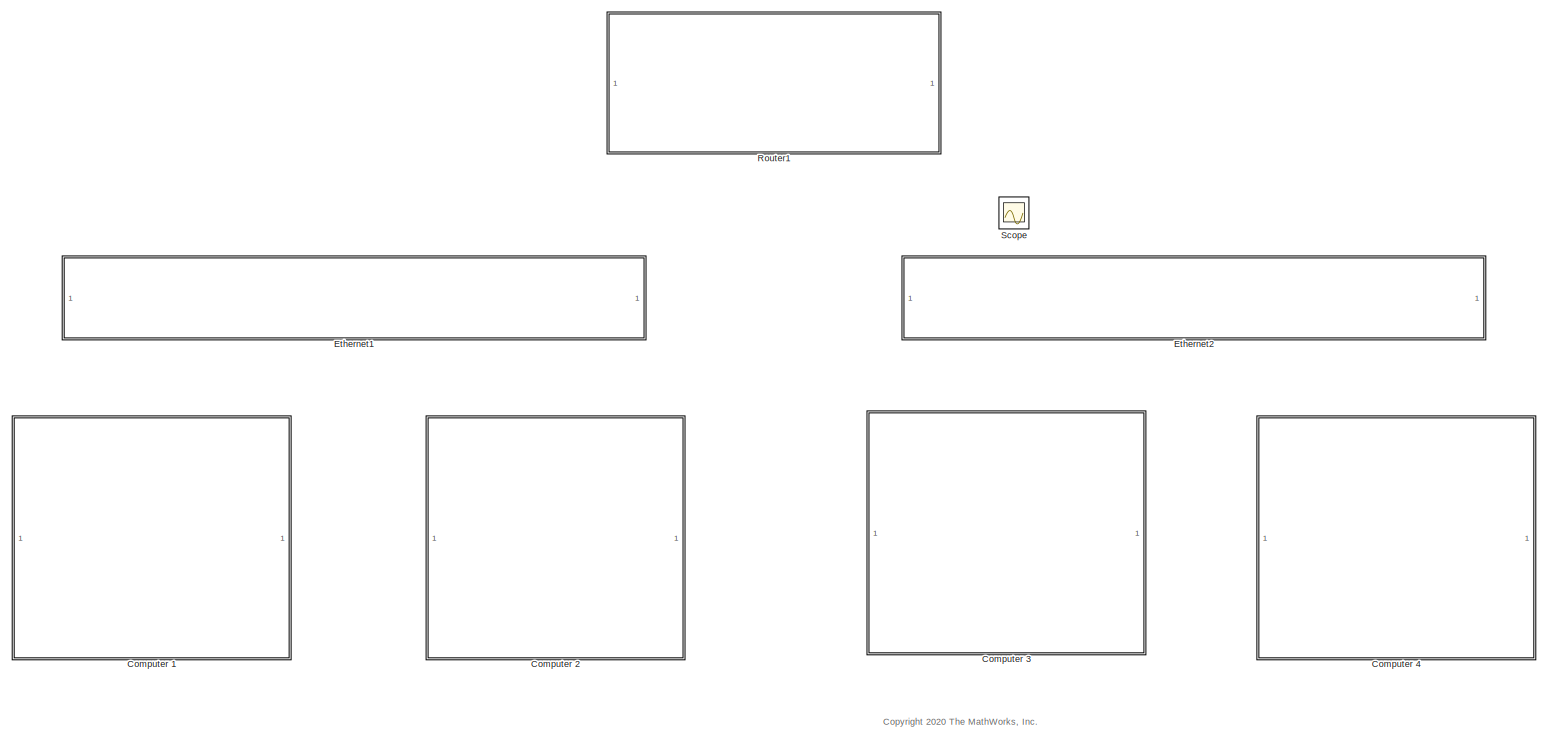
[diagram: root canvas - part 1/1, most of the canvas]
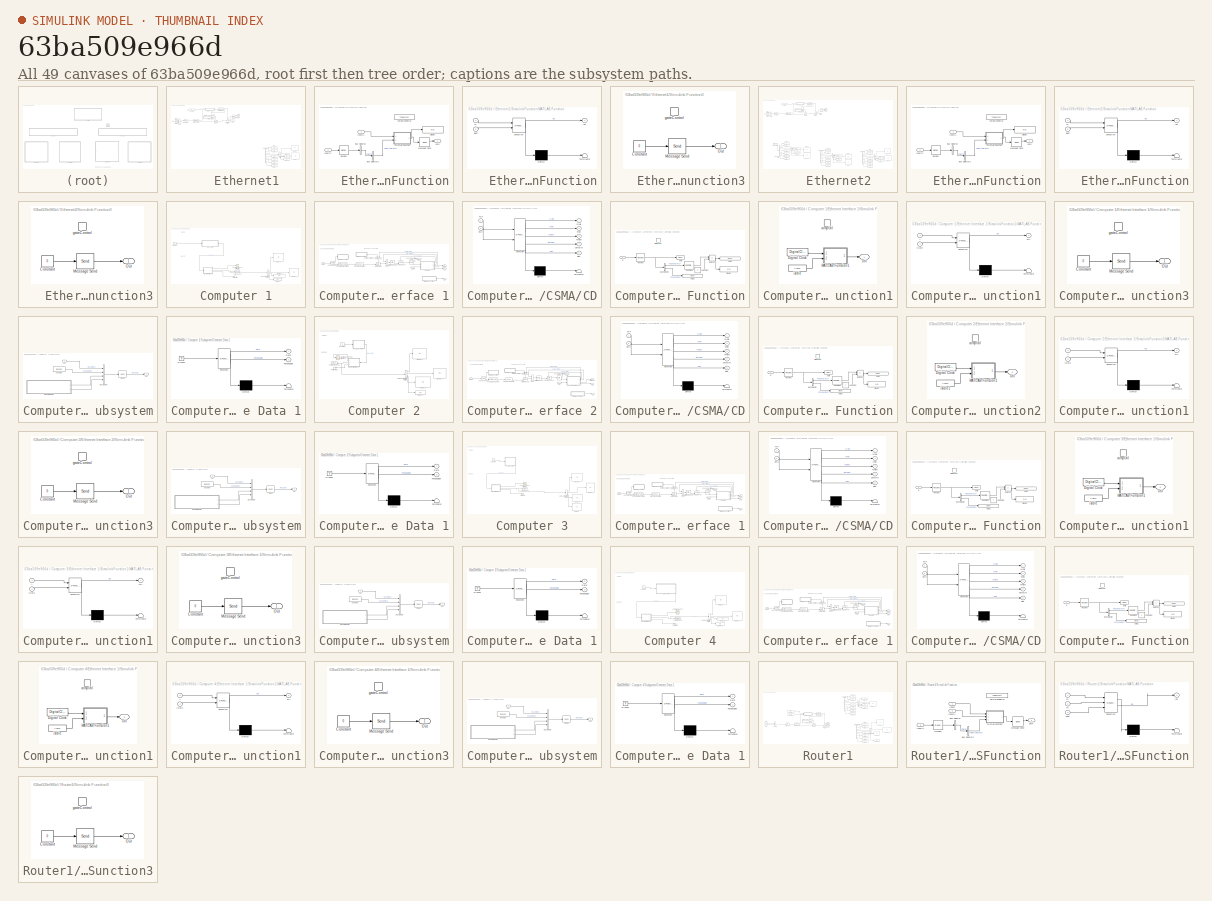
[diagram: thumbnail index - all 49 canvases of the model, root first then tree order]
MODEL slx_63ba509e966d
KIND model
CONFIG AbsTol = auto
CONFIG EnableMultiTasking = on
CONFIG FixedStep = 1
CONFIG InitFcn = BitRate = 10e6;
CONFIG MaxStep = Inf
CONFIG MinStep = auto
CONFIG PreLoadFcn = load ethernetTypes.mat;
CONFIG RelTol = 1e-3
CONFIG SampleTimeConstraint = Unconstrained
CONFIG SolverName = VariableStepAuto
CONFIG StartTime = 0.0
CONFIG StopTime = 30
BLOCK [SubSystem]    Ethernet1
  Ports = []
  RequestExecContextInheritance = off
BLOCK [EntityInputSwitch]    Ethernet1/Combine
  InputPortMap = u1,u2,u3
  InputPortMessageModes = m,m,m
  NumberInputPorts = 3
  OutputPortMap = o0
  OutputPortMessageModes = m
  Ports = [3, 1]
BLOCK [CompositeEntitySplitter]    Ethernet1/Composite Entity Splitter
  Commented = on
  InputPortMap = u0
  InputPortMessageModes = m
  NumberOutputPorts = 7
  OutputPortMap = o0,o1,o2,o3,o4,o5,o6
  OutputPortMessageModes = m,m,m,m,m,m,m
  Ports = [1, 7]
BLOCK [CompositeEntitySplitter]    Ethernet1/Composite Entity Splitter1
  Commented = on
  InputPortMap = u0
  InputPortMessageModes = m
  NumberOutputPorts = 4
  OutputPortMap = o0,o1,o2,o3
  OutputPortMessageModes = m,m,m,m
  Ports = [1, 4]
BLOCK [Constant]    Ethernet1/Constant1
  Value = ip
BLOCK [Display]    Ethernet1/Display
  Commented = on
  Decimation = 1
  Ports = [1]
BLOCK [Display]    Ethernet1/Display1
  Commented = on
  Decimation = 1
  Ports = [1]
BLOCK [Display]    Ethernet1/Display2
  Commented = on
  Decimation = 1
  Ports = [1]
BLOCK [Display]    Ethernet1/Display3
  Commented = on
  Decimation = 1
  Ports = [1]
BLOCK [Display]    Ethernet1/Display4
  Commented = on
  Decimation = 1
  Ports = [1]
BLOCK [Display]    Ethernet1/Display5
  Commented = on
  Decimation = 1
  Ports = [1]
BLOCK [Display]    Ethernet1/Display6
  Commented = on
  Decimation = 1
  Ports = [1]
BLOCK [Display]    Ethernet1/Display7
  Commented = on
  Decimation = 1
  Ports = [1]
BLOCK [Display]    Ethernet1/Display8
  Commented = on
  Decimation = 1
  Ports = [1]
BLOCK [Display]    Ethernet1/Display9
  Commented = on
  Decimation = 1
  Ports = [1]
BLOCK [EntityGate]    Ethernet1/Entity Gate
  InputPortMap = u0,u1
  InputPortMessageModes = m,m
  OpenGateAtSimulationStart = on
  OutputPortMap = o0
  OutputPortMessageModes = m
  Ports = [2, 1]
BLOCK [EntityInputSwitch]    Ethernet1/Entity Input Switch1
  InputPortMap = u1,u2
  InputPortMessageModes = m,m
  OutputPortMap = o0
  OutputPortMessageModes = m
  Ports = [2, 1]
BLOCK [EntityOutputSwitch]    Ethernet1/Entity Output Switch
  InputPortMap = u0,u1
  InputPortMessageModes = m,m
  OutputPortMap = o0,o1
  OutputPortMessageModes = m,m
  Ports = [2, 2]
  SwitchAttributeName = Attribute1
  SwitchingCriterion = From control port
BLOCK [EntityReplicator]    Ethernet1/Entity Replicator
  InputPortMap = u0
  InputPortMessageModes = m
  OutputPortMap = o0,o1
  OutputPortMessageModes = m,m
  Ports = [1, 2]
BLOCK [EntityReplicator]    Ethernet1/Entity Replicator1
  InputPortMap = u0
  InputPortMessageModes = m
  OutputPortMap = o0,o1
  OutputPortMessageModes = m,m
  Ports = [1, 2]
BLOCK [From]    Ethernet1/From1
  GotoTag = tx1_2
  TagVisibility = global
BLOCK [From]    Ethernet1/From2
  GotoTag = tx1_1
  TagVisibility = global
BLOCK [From]    Ethernet1/From3
  GotoTag = R1toV1
  TagVisibility = global
BLOCK [Goto]    Ethernet1/Goto
  GotoTag = v1
  TagVisibility = global
BLOCK [Goto]    Ethernet1/Goto1
  GotoTag = rx1_2
  TagVisibility = global
BLOCK [Goto]    Ethernet1/Goto2
  GotoTag = rx1_1
  TagVisibility = global
BLOCK [EntityReplicator]    Ethernet1/Replicator
  InputPortMap = u0
  InputPortMessageModes = m
  OutputPortMap = o0,o1
  OutputPortMessageModes = m,m
  Ports = [1, 2]
BLOCK [SubSystem]    Ethernet1/Simulink Function
  Ports = [2, 1, 0, 1]
  RequestExecContextInheritance = off
  TreatAsAtomicUnit = on
BLOCK [BusSelector]    Ethernet1/Simulink Function/Bus Selector
  OutputSignals = Data
  Ports = [1, 1]
BLOCK [BusSelector]    Ethernet1/Simulink Function/Bus Selector1
  OutputSignals = DestAddress
  Ports = [1, 1]
BLOCK [Display]    Ethernet1/Simulink Function/Display
  Decimation = 1
  Ports = [1]
BLOCK [Inport]    Ethernet1/Simulink Function/Inport1
BLOCK [Inport]    Ethernet1/Simulink Function/Inport2
  Port = 2
BLOCK [SubSystem]    Ethernet1/Simulink Function/MATLAB Function
  ErrorFcn = Stateflow.Translate.translate
  PermitHierarchicalResolution = ExplicitOnly
  Ports = [2, 1]
  RequestExecContextInheritance = off
  SFBlockType = MATLAB Function
  TreatAsAtomicUnit = on
BLOCK [Demux]    Ethernet1/Simulink Function/MATLAB Function/ Demux 
  Outputs = 1
  Ports = [1, 1]
BLOCK [S-Function]    Ethernet1/Simulink Function/MATLAB Function/ SFunction 
  EnableBusSupport = on
  FunctionName = sf_sfun
  PortCounts = [2 2]
  Ports = [2, 2]
  SFcnIsStateOwnerBlock = off
  SFunctionDeploymentMode = off
  Tag = Stateflow S-Function 11
BLOCK [Terminator]    Ethernet1/Simulink Function/MATLAB Function/ Terminator 
BLOCK [Inport]    Ethernet1/Simulink Function/MATLAB Function/dest
  Port = 2
BLOCK [Outport]    Ethernet1/Simulink Function/MATLAB Function/idx
BLOCK [Inport]    Ethernet1/Simulink Function/MATLAB Function/v1
BLOCK [Send]    Ethernet1/Simulink Function/Message Send
  InputPortMap = u1
  OutputPortMessageModes = m
  Ports = [1, 1]
BLOCK [Receive]    Ethernet1/Simulink Function/Receive
  InputPortMap = u0
  InputPortMessageModes = m
  OutputPortMap = o1
  Ports = [1, 1]
  QueueLength = 1
  QueueOverwriting = on
  QueueType = LIFO
  UseInternalQueue = off
BLOCK [TriggerPort]    Ethernet1/Simulink Function/networkselector
  FunctionName = networkselector
  FunctionVisibility = scoped
  IsSimulinkFunction = on
  Ports = []
  StatesWhenEnabling = held
  TriggerType = function-call
  VariantControl = (inherit)
BLOCK [Outport]    Ethernet1/Simulink Function/path
BLOCK [SubSystem]    Ethernet1/Simulink Function3
  Ports = [0, 1, 0, 1]
  RequestExecContextInheritance = off
  TreatAsAtomicUnit = on
BLOCK [Constant]    Ethernet1/Simulink Function3/Constant
  Value = 0
BLOCK [Send]    Ethernet1/Simulink Function3/Message Send
  InputPortMap = u1
  OutputPortMessageModes = m
  Ports = [1, 1]
BLOCK [Outport]    Ethernet1/Simulink Function3/Out
BLOCK [TriggerPort]    Ethernet1/Simulink Function3/gateControl
  FunctionName = gateControl
  FunctionVisibility = scoped
  IsSimulinkFunction = on
  Ports = []
  StatesWhenEnabling = held
  TriggerType = function-call
  VariantControl = Variant
BLOCK [EntityServer]    Ethernet1/Transport Delay
  Capacity = Inf
  ExitAction = gateControl();
  InputPortMap = u2
  InputPortMessageModes = m
  OutputPortMap = o9
  OutputPortMessageModes = m
  Ports = [1, 1]
  ServiceCompleteAction = networkselector();\nsrc = entity.TxAddress;\ndst = entity.RxAddress;\nsrcIdx = 0;\ndstIdx = 0;\nfor i = 1:length(Stations)\n    if src == Stations(i)\n        srcIdx = i;\n    end\n    if dst == Stations(i)\n        dstIdx = i;\n    end\n    if srcIdx > 0 && dstIdx > 0\n        break;\n    end\nend\nif rand < (PER(srcIdx) + PER(dstIdx))\n    entity.CRC = 1;\nend
  ServiceTimeAction = src = entity.TxAddress;\ndst = entity.RxAddress;\nsrcl = 0;\ndstl = 0;\nfor i = 1:length(Stations)\n    if src == Stations(i)\n        srcl = CableLength(i);\n    end\n    if dst == Stations(i)\n        dstl = CableLength(i);\n    end\n    if srcl > 0 && dstl > 0\n        break;\n    end\nend\ndt = ProcessingTime + (srcl + dstl)/3e8;
  ServiceTimeSource = MATLAB action
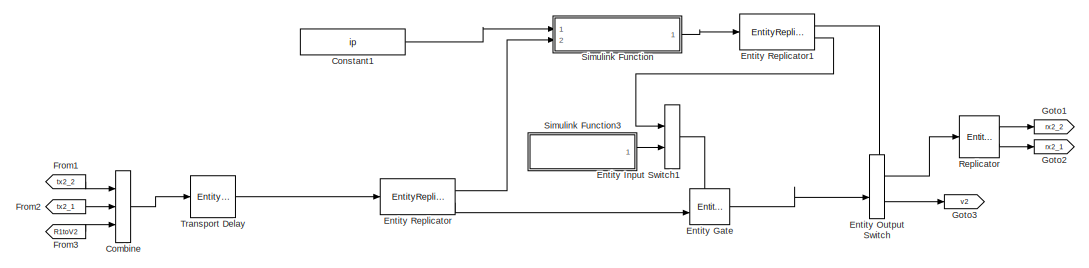
[diagram:    Ethernet2 - part 1/3, top left region]
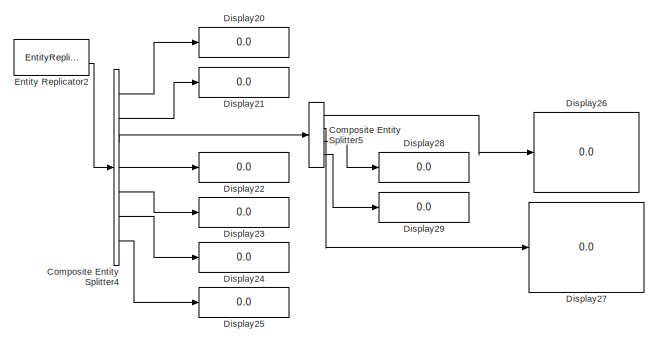
[diagram:    Ethernet2 - part 2/3, bottom left region]
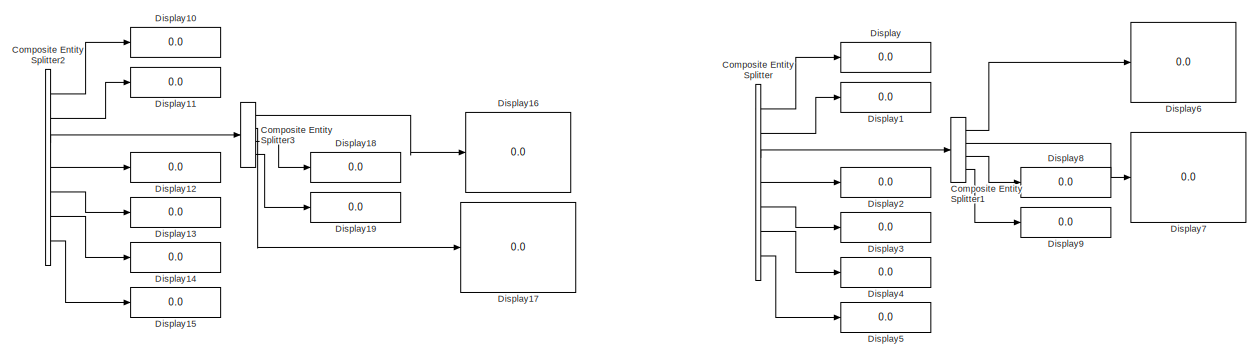
[diagram:    Ethernet2 - part 3/3, bottom right region]
BLOCK [SubSystem]    Ethernet2
  Ports = []
  RequestExecContextInheritance = off
BLOCK [EntityInputSwitch]    Ethernet2/Combine
  InputPortMap = u1,u2,u3
  InputPortMessageModes = m,m,m
  NumberInputPorts = 3
  OutputPortMap = o0
  OutputPortMessageModes = m
  Ports = [3, 1]
BLOCK [CompositeEntitySplitter]    Ethernet2/Composite Entity Splitter
  Commented = on
  InputPortMap = u0
  InputPortMessageModes = m
  NumberOutputPorts = 7
  OutputPortMap = o0,o1,o2,o3,o4,o5,o6
  OutputPortMessageModes = m,m,m,m,m,m,m
  Ports = [1, 7]
BLOCK [CompositeEntitySplitter]    Ethernet2/Composite Entity Splitter1
  Commented = on
  InputPortMap = u0
  InputPortMessageModes = m
  NumberOutputPorts = 4
  OutputPortMap = o0,o1,o2,o3
  OutputPortMessageModes = m,m,m,m
  Ports = [1, 4]
BLOCK [CompositeEntitySplitter]    Ethernet2/Composite Entity Splitter2
  Commented = on
  InputPortMap = u0
  InputPortMessageModes = m
  NumberOutputPorts = 7
  OutputPortMap = o0,o1,o2,o3,o4,o5,o6
  OutputPortMessageModes = m,m,m,m,m,m,m
  Ports = [1, 7]
BLOCK [CompositeEntitySplitter]    Ethernet2/Composite Entity Splitter3
  Commented = on
  InputPortMap = u0
  InputPortMessageModes = m
  NumberOutputPorts = 4
  OutputPortMap = o0,o1,o2,o3
  OutputPortMessageModes = m,m,m,m
  Ports = [1, 4]
BLOCK [CompositeEntitySplitter]    Ethernet2/Composite Entity Splitter4
  Commented = on
  InputPortMap = u0
  InputPortMessageModes = m
  NumberOutputPorts = 7
  OutputPortMap = o0,o1,o2,o3,o4,o5,o6
  OutputPortMessageModes = m,m,m,m,m,m,m
  Ports = [1, 7]
BLOCK [CompositeEntitySplitter]    Ethernet2/Composite Entity Splitter5
  Commented = on
  InputPortMap = u0
  InputPortMessageModes = m
  NumberOutputPorts = 4
  OutputPortMap = o0,o1,o2,o3
  OutputPortMessageModes = m,m,m,m
  Ports = [1, 4]
BLOCK [Constant]    Ethernet2/Constant1
  Value = ip
BLOCK [Display]    Ethernet2/Display
  Commented = on
  Decimation = 1
  Ports = [1]
BLOCK [Display]    Ethernet2/Display1
  Commented = on
  Decimation = 1
  Ports = [1]
BLOCK [Display]    Ethernet2/Display10
  Commented = on
  Decimation = 1
  Ports = [1]
BLOCK [Display]    Ethernet2/Display11
  Commented = on
  Decimation = 1
  Ports = [1]
BLOCK [Display]    Ethernet2/Display12
  Commented = on
  Decimation = 1
  Ports = [1]
BLOCK [Display]    Ethernet2/Display13
  Commented = on
  Decimation = 1
  Ports = [1]
BLOCK [Display]    Ethernet2/Display14
  Commented = on
  Decimation = 1
  Ports = [1]
BLOCK [Display]    Ethernet2/Display15
  Commented = on
  Decimation = 1
  Ports = [1]
BLOCK [Display]    Ethernet2/Display16
  Commented = on
  Decimation = 1
  Ports = [1]
BLOCK [Display]    Ethernet2/Display17
  Commented = on
  Decimation = 1
  Ports = [1]
BLOCK [Display]    Ethernet2/Display18
  Commented = on
  Decimation = 1
  Ports = [1]
BLOCK [Display]    Ethernet2/Display19
  Commented = on
  Decimation = 1
  Ports = [1]
BLOCK [Display]    Ethernet2/Display2
  Commented = on
  Decimation = 1
  Ports = [1]
BLOCK [Display]    Ethernet2/Display20
  Commented = on
  Decimation = 1
  Ports = [1]
BLOCK [Display]    Ethernet2/Display21
  Commented = on
  Decimation = 1
  Ports = [1]
BLOCK [Display]    Ethernet2/Display22
  Commented = on
  Decimation = 1
  Ports = [1]
BLOCK [Display]    Ethernet2/Display23
  Commented = on
  Decimation = 1
  Ports = [1]
BLOCK [Display]    Ethernet2/Display24
  Commented = on
  Decimation = 1
  Ports = [1]
BLOCK [Display]    Ethernet2/Display25
  Commented = on
  Decimation = 1
  Ports = [1]
BLOCK [Display]    Ethernet2/Display26
  Commented = on
  Decimation = 1
  Ports = [1]
BLOCK [Display]    Ethernet2/Display27
  Commented = on
  Decimation = 1
  Ports = [1]
BLOCK [Display]    Ethernet2/Display28
  Commented = on
  Decimation = 1
  Ports = [1]
BLOCK [Display]    Ethernet2/Display29
  Commented = on
  Decimation = 1
  Ports = [1]
BLOCK [Display]    Ethernet2/Display3
  Commented = on
  Decimation = 1
  Ports = [1]
BLOCK [Display]    Ethernet2/Display4
  Commented = on
  Decimation = 1
  Ports = [1]
BLOCK [Display]    Ethernet2/Display5
  Commented = on
  Decimation = 1
  Ports = [1]
BLOCK [Display]    Ethernet2/Display6
  Commented = on
  Decimation = 1
  Ports = [1]
BLOCK [Display]    Ethernet2/Display7
  Commented = on
  Decimation = 1
  Ports = [1]
BLOCK [Display]    Ethernet2/Display8
  Commented = on
  Decimation = 1
  Ports = [1]
BLOCK [Display]    Ethernet2/Display9
  Commented = on
  Decimation = 1
  Ports = [1]
BLOCK [EntityGate]    Ethernet2/Entity Gate
  InputPortMap = u0,u1
  InputPortMessageModes = m,m
  OpenGateAtSimulationStart = on
  OutputPortMap = o0
  OutputPortMessageModes = m
  Ports = [2, 1]
BLOCK [EntityInputSwitch]    Ethernet2/Entity Input Switch1
  InputPortMap = u1,u2
  InputPortMessageModes = m,m
  OutputPortMap = o0
  OutputPortMessageModes = m
  Ports = [2, 1]
BLOCK [EntityOutputSwitch]    Ethernet2/Entity Output Switch
  InputPortMap = u0,u1
  InputPortMessageModes = m,m
  OutputPortMap = o0,o1
  OutputPortMessageModes = m,m
  Ports = [2, 2]
  SwitchAttributeName = Attribute1
  SwitchingCriterion = From control port
BLOCK [EntityReplicator]    Ethernet2/Entity Replicator
  InputPortMap = u0
  InputPortMessageModes = m
  OutputPortMap = o0,o1
  OutputPortMessageModes = m,m
  Ports = [1, 2]
BLOCK [EntityReplicator]    Ethernet2/Entity Replicator1
  InputPortMap = u0
  InputPortMessageModes = m
  OutputPortMap = o0,o1
  OutputPortMessageModes = m,m
  Ports = [1, 2]
BLOCK [EntityReplicator]    Ethernet2/Entity Replicator2
  Commented = on
  InputPortMap = u0
  InputPortMessageModes = m
  OutputPortMap = o0,o1
  OutputPortMessageModes = m,m
  Ports = [1, 2]
BLOCK [From]    Ethernet2/From1
  GotoTag = tx2_2
  TagVisibility = global
BLOCK [From]    Ethernet2/From2
  GotoTag = tx2_1
  TagVisibility = global
BLOCK [From]    Ethernet2/From3
  GotoTag = R1toV2
  TagVisibility = global
BLOCK [Goto]    Ethernet2/Goto1
  GotoTag = rx2_2
  TagVisibility = global
BLOCK [Goto]    Ethernet2/Goto2
  GotoTag = rx2_1
  TagVisibility = global
BLOCK [Goto]    Ethernet2/Goto3
  GotoTag = v2
  TagVisibility = global
BLOCK [EntityReplicator]    Ethernet2/Replicator
  InputPortMap = u0
  InputPortMessageModes = m
  OutputPortMap = o0,o1
  OutputPortMessageModes = m,m
  Ports = [1, 2]
BLOCK [SubSystem]    Ethernet2/Simulink Function
  Ports = [2, 1, 0, 1]
  RequestExecContextInheritance = off
  TreatAsAtomicUnit = on
BLOCK [BusSelector]    Ethernet2/Simulink Function/Bus Selector
  OutputSignals = Data
  Ports = [1, 1]
BLOCK [BusSelector]    Ethernet2/Simulink Function/Bus Selector1
  OutputSignals = DestAddress
  Ports = [1, 1]
BLOCK [Display]    Ethernet2/Simulink Function/Display
  Decimation = 1
  Ports = [1]
BLOCK [Inport]    Ethernet2/Simulink Function/Inport1
BLOCK [Inport]    Ethernet2/Simulink Function/Inport2
  Port = 2
BLOCK [SubSystem]    Ethernet2/Simulink Function/MATLAB Function
  ErrorFcn = Stateflow.Translate.translate
  PermitHierarchicalResolution = ExplicitOnly
  Ports = [2, 1]
  RequestExecContextInheritance = off
  SFBlockType = MATLAB Function
  TreatAsAtomicUnit = on
BLOCK [Demux]    Ethernet2/Simulink Function/MATLAB Function/ Demux 
  Outputs = 1
  Ports = [1, 1]
BLOCK [S-Function]    Ethernet2/Simulink Function/MATLAB Function/ SFunction 
  EnableBusSupport = on
  FunctionName = sf_sfun
  PortCounts = [2 2]
  Ports = [2, 2]
  SFcnIsStateOwnerBlock = off
  SFunctionDeploymentMode = off
  Tag = Stateflow S-Function 16
BLOCK [Terminator]    Ethernet2/Simulink Function/MATLAB Function/ Terminator 
BLOCK [Inport]    Ethernet2/Simulink Function/MATLAB Function/dest
  Port = 2
BLOCK [Outport]    Ethernet2/Simulink Function/MATLAB Function/idx
BLOCK [Inport]    Ethernet2/Simulink Function/MATLAB Function/v1
BLOCK [Send]    Ethernet2/Simulink Function/Message Send
  InputPortMap = u1
  OutputPortMessageModes = m
  Ports = [1, 1]
BLOCK [Receive]    Ethernet2/Simulink Function/Receive
  InputPortMap = u0
  InputPortMessageModes = m
  OutputPortMap = o1
  Ports = [1, 1]
  QueueLength = 1
  QueueOverwriting = on
  QueueType = LIFO
  UseInternalQueue = off
BLOCK [TriggerPort]    Ethernet2/Simulink Function/networkselector
  FunctionName = networkselector
  FunctionVisibility = scoped
  IsSimulinkFunction = on
  Ports = []
  StatesWhenEnabling = held
  TriggerType = function-call
  VariantControl = (inherit)
BLOCK [Outport]    Ethernet2/Simulink Function/path
BLOCK [SubSystem]    Ethernet2/Simulink Function3
  Ports = [0, 1, 0, 1]
  RequestExecContextInheritance = off
  TreatAsAtomicUnit = on
BLOCK [Constant]    Ethernet2/Simulink Function3/Constant
  Value = 0
BLOCK [Send]    Ethernet2/Simulink Function3/Message Send
  InputPortMap = u1
  OutputPortMessageModes = m
  Ports = [1, 1]
BLOCK [Outport]    Ethernet2/Simulink Function3/Out
BLOCK [TriggerPort]    Ethernet2/Simulink Function3/gateControl
  FunctionName = gateControl
  FunctionVisibility = scoped
  IsSimulinkFunction = on
  Ports = []
  StatesWhenEnabling = held
  TriggerType = function-call
  VariantControl = Variant
BLOCK [EntityServer]    Ethernet2/Transport Delay
  Capacity = Inf
  ExitAction = gateControl();
  InputPortMap = u2
  InputPortMessageModes = m
  OutputPortMap = o9
  OutputPortMessageModes = m
  Ports = [1, 1]
  ServiceCompleteAction = networkselector();\nsrc = entity.TxAddress;\ndst = entity.RxAddress;\nsrcIdx = 0;\ndstIdx = 0;\nfor i = 1:length(Stations)\n    if src == Stations(i)\n        srcIdx = i;\n    end\n    if dst == Stations(i)\n        dstIdx = i;\n    end\n    if srcIdx > 0 && dstIdx > 0\n        break;\n    end\nend\nif rand < (PER(srcIdx) + PER(dstIdx))\n    entity.CRC = 1;\nend
  ServiceTimeAction = src = entity.TxAddress;\ndst = entity.RxAddress;\nsrcl = 0;\ndstl = 0;\nfor i = 1:length(Stations)\n    if src == Stations(i)\n        srcl = CableLength(i);\n    end\n    if dst == Stations(i)\n        dstl = CableLength(i);\n    end\n    if srcl > 0 && dstl > 0\n        break;\n    end\nend\ndt = ProcessingTime + (srcl + dstl)/3e8;
  ServiceTimeSource = MATLAB action
BLOCK [SubSystem] Computer 1
  Ports = []
  RequestExecContextInheritance = off
BLOCK [Scope] Computer 1/Average Channel Utilization
  Floating = off
  NumInputPorts = 1
  Ports = [1]
  ScopeSpecificationString = Simulink.scopes.TimeScopeBlockCfg('CurrentConfiguration', extmgr.ConfigurationSet(extmgr.Configuration('Core','General UI',true),extmgr.Configuration('Core','Source UI',true),extmgr.Configuration('Sources','WiredSimulink',true,'DataLoggingVariableName','ScopeData1'),extmgr.Configuration('Visuals','Time Domain',true,'SerializedDisplays',{struct('MinYLimReal','0.02857','MaxYLimReal','0.20918','YLabe...<+1455ch>
BLOCK [CompositeEntitySplitter] Computer 1/Composite Entity Splitter1
  InputPortMap = u0
  InputPortMessageModes = m
  NumberOutputPorts = 4
  OutputPortMap = o0,o1,o2,o3
  OutputPortMessageModes = m,m,m,m
  Ports = [1, 4]
BLOCK [Constant] Computer 1/Constant
  Value = ip
BLOCK [Display] Computer 1/Display6
  Decimation = 1
  Ports = [1]
BLOCK [Display] Computer 1/Display7
  Decimation = 1
  Ports = [1]
BLOCK [Display] Computer 1/Display8
  Decimation = 1
  Ports = [1]
BLOCK [Display] Computer 1/Display9
  Decimation = 1
  Ports = [1]
BLOCK [SubSystem] Computer 1/Ethernet Interface 1
  Ports = [1, 3]
  RequestExecContextInheritance = off
BLOCK [EntityGate] Computer 1/Ethernet Interface 1/Admit 1 Frame 
  InputPortMap = u0,u1
  InputPortMessageModes = m,m
  OpenGateAtSimulationStart = on
  OutputPortMap = o0
  OutputPortMessageModes = m
  Ports = [2, 1]
BLOCK [EntityGenerator] Computer 1/Ethernet Interface 1/Assemble MAC Frame
  EntityType = Bus object
  EntityTypeName = ethernetPacket
  GenerateAction = entity.TxAddress = StationID;\n[entity.Data, entity.RxAddress, entity.PayloadSize] = initPacket();\nentity.TxDelay = (entity.PayloadSize+22)*8/BitRate;\nentity.BackoffTime = 0;\nentity.CRC = 0;  <repeated x4 — deduplicated; at blocks: Assemble MAC Frame>
  GenerationMethod = Event-based
  InputPortMap = u0
  InputPortMessageModes = m
  OutputPortMap = o3
  OutputPortMessageModes = m
  Ports = [1, 1]
BLOCK [SubSystem] Computer 1/Ethernet Interface 1/CSMA//CD
  ErrorFcn = Stateflow.Translate.translate
  PermitHierarchicalResolution = ExplicitOnly
  Ports = [2, 5]
  RequestExecContextInheritance = off
  SFBlockType = Chart
  TreatAsAtomicUnit = on
BLOCK [Demux] Computer 1/Ethernet Interface 1/CSMA//CD/ Demux 
  Outputs = 1
  Ports = [1, 1]
BLOCK [S-Function] Computer 1/Ethernet Interface 1/CSMA//CD/ SFunction 
  EnableBusSupport = on
  FunctionName = sf_sfun
  InputPortMessageModes = m,m
  OutputPortMessageModes = n,m,m,m,m,n
  Parameters = StationID
  PortCounts = [2 6]
  Ports = [2, 6]
  SFcnIsStateOwnerBlock = off
  SFunctionDeploymentMode = off
  Tag = Stateflow S-Function 4
BLOCK [Terminator] Computer 1/Ethernet Interface 1/CSMA//CD/ Terminator 
BLOCK [Outport] Computer 1/Ethernet Interface 1/CSMA//CD/DataOut
  Port = 4
BLOCK [Outport] Computer 1/Ethernet Interface 1/CSMA//CD/IsIdle
BLOCK [Inport] Computer 1/Ethernet Interface 1/CSMA//CD/RxIn
  Port = 2
BLOCK [Outport] Computer 1/Ethernet Interface 1/CSMA//CD/Size
  Port = 5
BLOCK [Inport] Computer 1/Ethernet Interface 1/CSMA//CD/TxIn
BLOCK [Outport] Computer 1/Ethernet Interface 1/CSMA//CD/TxNext
  Port = 3
BLOCK [Outport] Computer 1/Ethernet Interface 1/CSMA//CD/TxRe
  Port = 2
BLOCK [EntityReplicator] Computer 1/Ethernet Interface 1/Copy Message
  InputPortMap = u0
  InputPortMessageModes = m
  OutputPortMap = o0,o1
  OutputPortMessageModes = m,m
  Ports = [1, 2]
BLOCK [EntityReplicator] Computer 1/Ethernet Interface 1/Copy Transmitted Frame
  InputPortMap = u0
  InputPortMessageModes = m
  OutputPortMap = o0,o1
  OutputPortMessageModes = m,m
  Ports = [1, 2]
BLOCK [Inport] Computer 1/Ethernet Interface 1/DataIn
BLOCK [Outport] Computer 1/Ethernet Interface 1/DataOut
  Port = 2
BLOCK [EntityInputSwitch] Computer 1/Ethernet Interface 1/Entity Input Switch1
  InputPortMap = u1,u2
  InputPortMessageModes = m,m
  NameLocation = left
  OutputPortMap = o0
  OutputPortMessageModes = m
  Ports = [2, 1]
BLOCK [From] Computer 1/Ethernet Interface 1/From
  GotoTag = rx1_1
  TagVisibility = global
BLOCK [Goto] Computer 1/Ethernet Interface 1/Goto
  GotoTag = tx1_1
  TagVisibility = global
BLOCK [EntityInputSwitch] Computer 1/Ethernet Interface 1/Merge 
  InputPortMap = u1,u2
  InputPortMessageModes = m,m
  OutputPortMap = o0
  OutputPortMessageModes = m
  Ports = [2, 1]
BLOCK [EntityGate] Computer 1/Ethernet Interface 1/Send to Channel
  InputPortMap = u0,u1
  InputPortMessageModes = m,m
  OpenGateAtSimulationStart = on
  OutputPortMap = o0
  OutputPortMessageModes = m
  Ports = [2, 1]
BLOCK [SubSystem] Computer 1/Ethernet Interface 1/Simulink Function
  Ports = [1, 0, 0, 1]
  RequestExecContextInheritance = off
  TreatAsAtomicUnit = on
BLOCK [BusSelector] Computer 1/Ethernet Interface 1/Simulink Function/Bus Selector
  OutputSignals = DestAddress,PayloadSize
  Ports = [1, 2]
BLOCK [Constant] Computer 1/Ethernet Interface 1/Simulink Function/Constant
BLOCK [Display] Computer 1/Ethernet Interface 1/Simulink Function/Display
  Decimation = 1
  Ports = [1]
BLOCK [Inport] Computer 1/Ethernet Interface 1/Simulink Function/In
BLOCK [Receive] Computer 1/Ethernet Interface 1/Simulink Function/Receive
  InputPortMap = u0
  InputPortMessageModes = m
  OutputPortMap = o1
  Ports = [1, 1]
  QueueLength = 2^16-1
BLOCK [Reference] Computer 1/Ethernet Interface 1/Simulink Function/Submatrix  REF=matrix_library/Submatrix
  Ports = [1, 1]
  SourceBlock = matrix_library/Submatrix
  SourceProductBaseCode = SL
  SourceType = Submatrix
BLOCK [Sum] Computer 1/Ethernet Interface 1/Simulink Function/Subtract
  IconShape = rectangular
  Inputs = +-
  Ports = [2, 1]
BLOCK [ArgOut] Computer 1/Ethernet Interface 1/Simulink Function/data
  ArgumentName = data
  DisableCoverage = on
  OutDataTypeStr = Bus: dataPacket
BLOCK [ArgOut] Computer 1/Ethernet Interface 1/Simulink Function/data1
  ArgumentName = payloadsize
  DisableCoverage = on
  Port = 3
BLOCK [ArgOut] Computer 1/Ethernet Interface 1/Simulink Function/data2
  ArgumentName = DestAddress
  DisableCoverage = on
  Port = 2
BLOCK [TriggerPort] Computer 1/Ethernet Interface 1/Simulink Function/initPacket
  FunctionName = initPacket
  FunctionVisibility = scoped
  IsSimulinkFunction = on
  Ports = []
  StatesWhenEnabling = held
  TriggerType = function-call
  VariantControl = (inherit)
BLOCK [SubSystem] Computer 1/Ethernet Interface 1/Simulink Function1
  Ports = [0, 1, 0, 1]
  RequestExecContextInheritance = off
  TreatAsAtomicUnit = on
BLOCK [DigitalClock] Computer 1/Ethernet Interface 1/Simulink Function1/Digital Clock
  SampleTime = -1
BLOCK [SubSystem] Computer 1/Ethernet Interface 1/Simulink Function1/MATLAB Function1
  ErrorFcn = Stateflow.Translate.translate
  PermitHierarchicalResolution = ExplicitOnly
  Ports = [2, 1]
  RequestExecContextInheritance = off
  SFBlockType = MATLAB Function
  TreatAsAtomicUnit = on
BLOCK [Demux] Computer 1/Ethernet Interface 1/Simulink Function1/MATLAB Function1/ Demux 
  Outputs = 1
  Ports = [1, 1]
BLOCK [S-Function] Computer 1/Ethernet Interface 1/Simulink Function1/MATLAB Function1/ SFunction 
  EnableBusSupport = on
  FunctionName = sf_sfun
  PortCounts = [2 2]
  Ports = [2, 2]
  SFcnIsStateOwnerBlock = off
  SFunctionDeploymentMode = off
  Tag = Stateflow S-Function 7
BLOCK [Terminator] Computer 1/Ethernet Interface 1/Simulink Function1/MATLAB Function1/ Terminator 
BLOCK [Inport] Computer 1/Ethernet Interface 1/Simulink Function1/MATLAB Function1/isIdle
  Port = 2
BLOCK [Inport] Computer 1/Ethernet Interface 1/Simulink Function1/MATLAB Function1/t
BLOCK [Outport] Computer 1/Ethernet Interface 1/Simulink Function1/MATLAB Function1/util
BLOCK [TriggerPort] Computer 1/Ethernet Interface 1/Simulink Function1/compUtil
  FunctionName = compUtil
  FunctionVisibility = scoped
  IsSimulinkFunction = on
  Ports = []
  StatesWhenEnabling = held
  TriggerType = function-call
  VariantControl = (inherit)
BLOCK [ArgIn] Computer 1/Ethernet Interface 1/Simulink Function1/isIdle
  ArgumentName = isIdle
BLOCK [Outport] Computer 1/Ethernet Interface 1/Simulink Function1/util
BLOCK [SubSystem] Computer 1/Ethernet Interface 1/Simulink Function3
  Ports = [0, 1, 0, 1]
  RequestExecContextInheritance = off
  TreatAsAtomicUnit = on
BLOCK [Constant] Computer 1/Ethernet Interface 1/Simulink Function3/Constant
  Value = 0
BLOCK [Send] Computer 1/Ethernet Interface 1/Simulink Function3/Message Send
  InputPortMap = u1
  OutputPortMessageModes = m
  Ports = [1, 1]
BLOCK [Outport] Computer 1/Ethernet Interface 1/Simulink Function3/Out
BLOCK [TriggerPort] Computer 1/Ethernet Interface 1/Simulink Function3/gateControl
  FunctionName = gateControl
  FunctionVisibility = scoped
  IsSimulinkFunction = on
  Ports = []
  StatesWhenEnabling = held
  TriggerType = function-call
  VariantControl = Variant
BLOCK [Outport] Computer 1/Ethernet Interface 1/Size
  Port = 3
BLOCK [Queue] Computer 1/Ethernet Interface 1/Transmission Buffer
  Capacity = TxBufferCapacity
  ExitAction = gateControl();
  InputPortMap = u0
  InputPortMessageModes = m
  OutputPortMap = o5
  OutputPortMessageModes = m
  Ports = [1, 1]
BLOCK [EntityServer] Computer 1/Ethernet Interface 1/Wait for Channel
  Capacity = 1
  InputPortMap = u2
  InputPortMessageModes = m
  OutputPortMap = o9
  OutputPortMessageModes = m
  Ports = [1, 1]
  ServiceTimeAttributeName = BackoffTime
  ServiceTimeSource = Attribute
BLOCK [Outport] Computer 1/Ethernet Interface 1/util
BLOCK [SubSystem] Computer 1/Subsystem
  Ports = [1, 1]
  RequestExecContextInheritance = off
BLOCK [BusCreator] Computer 1/Subsystem/Bus Creator
  DisplayOption = bar
  InheritFromInputs = on
  Inputs = 4
  NonVirtualBus = on
  OutDataTypeStr = Bus: dataPacket
  Ports = [4, 1]
BLOCK [Constant] Computer 1/Subsystem/Constant
  Value = [10 1 2 3]
BLOCK [SubSystem] Computer 1/Subsystem/Generate Data 1
  ErrorFcn = Stateflow.Translate.translate
  PermitHierarchicalResolution = ExplicitOnly
  Ports = [0, 2]
  RequestExecContextInheritance = off
  SFBlockType = MATLAB Function
  SystemSampleTime = 0.2
  TreatAsAtomicUnit = on
BLOCK [Demux] Computer 1/Subsystem/Generate Data 1/ Demux 
  Outputs = 1
  Ports = [1, 1]
BLOCK [Ground] Computer 1/Subsystem/Generate Data 1/ Ground 
BLOCK [S-Function] Computer 1/Subsystem/Generate Data 1/ SFunction 
  EnableBusSupport = on
  FunctionName = sf_sfun
  PortCounts = [1 3]
  Ports = [1, 3]
  SFcnIsStateOwnerBlock = off
  SFunctionDeploymentMode = off
  Tag = Stateflow S-Function 1
BLOCK [Terminator] Computer 1/Subsystem/Generate Data 1/ Terminator 
BLOCK [Outport] Computer 1/Subsystem/Generate Data 1/Data
BLOCK [Outport] Computer 1/Subsystem/Generate Data 1/PayloadSize
  Port = 2
BLOCK [Inport] Computer 1/Subsystem/In1
BLOCK [Send] Computer 1/Subsystem/Send
  InputPortMap = u1
  OutputPortMessageModes = m
  Ports = [1, 1]
BLOCK [Outport] Computer 1/Subsystem/out
  BusOutputAsStruct = on
  InputPortMessageModes = m
  OutDataTypeStr = Bus: dataPacket
BLOCK [Terminator] Computer 1/Terminator
BLOCK [ToWorkspace] Computer 1/To Workspace
  FixptAsFi = on
  MaxDataPoints = inf
  Ports = [1]
  SampleTime = -1
  SaveFormat = Timeseries
  VariableName = Rx1_1
BLOCK [SubSystem] Computer 2
  Ports = []
  RequestExecContextInheritance = off
BLOCK [Scope] Computer 2/Average Channel Utilization1
  Floating = off
  NumInputPorts = 1
  Ports = [1]
  ScopeSpecificationString = Simulink.scopes.TimeScopeBlockCfg('CurrentConfiguration', extmgr.ConfigurationSet(extmgr.Configuration('Core','General UI',true),extmgr.Configuration('Core','Source UI',true),extmgr.Configuration('Sources','WiredSimulink',true,'DataLoggingVariableName','ScopeData1'),extmgr.Configuration('Visuals','Time Domain',true,'SerializedDisplays',{struct('MinYLimReal','0.05678','MaxYLimReal','0.25212','YLabe...<+1456ch>
BLOCK [CompositeEntitySplitter] Computer 2/Composite Entity Splitter1
  InputPortMap = u0
  InputPortMessageModes = m
  NumberOutputPorts = 4
  OutputPortMap = o0,o1,o2,o3
  OutputPortMessageModes = m,m,m,m
  Ports = [1, 4]
BLOCK [Constant] Computer 2/Constant
  Value = ip
BLOCK [Display] Computer 2/Display6
  Decimation = 1
  Ports = [1]
BLOCK [Display] Computer 2/Display7
  Decimation = 1
  Ports = [1]
BLOCK [Display] Computer 2/Display8
  Decimation = 1
  Ports = [1]
BLOCK [Display] Computer 2/Display9
  Decimation = 1
  Ports = [1]
BLOCK [SubSystem] Computer 2/Ethernet Interface 2
  Ports = [1, 3]
  RequestExecContextInheritance = off
BLOCK [EntityGate] Computer 2/Ethernet Interface 2/Admit 1 packet 
  InputPortMap = u0,u1
  InputPortMessageModes = m,m
  OpenGateAtSimulationStart = on
  OutputPortMap = o0
  OutputPortMessageModes = m
  Ports = [2, 1]
BLOCK [EntityGenerator] Computer 2/Ethernet Interface 2/Assemble MAC Frame
  EntityType = Bus object
  EntityTypeName = ethernetPacket
  GenerationMethod = Event-based
  InputPortMap = u0
  InputPortMessageModes = m
  OutputPortMap = o3
  OutputPortMessageModes = m
  Ports = [1, 1]
BLOCK [SubSystem] Computer 2/Ethernet Interface 2/CSMA//CD
  ErrorFcn = Stateflow.Translate.translate
  PermitHierarchicalResolution = ExplicitOnly
  Ports = [2, 5]
  RequestExecContextInheritance = off
  SFBlockType = Chart
  TreatAsAtomicUnit = on
BLOCK [Demux] Computer 2/Ethernet Interface 2/CSMA//CD/ Demux 
  Outputs = 1
  Ports = [1, 1]
BLOCK [S-Function] Computer 2/Ethernet Interface 2/CSMA//CD/ SFunction 
  EnableBusSupport = on
  FunctionName = sf_sfun
  InputPortMessageModes = m,m
  OutputPortMessageModes = n,m,m,m,m,n
  Parameters = StationID
  PortCounts = [2 6]
  Ports = [2, 6]
  SFcnIsStateOwnerBlock = off
  SFunctionDeploymentMode = off
  Tag = Stateflow S-Function 2
BLOCK [Terminator] Computer 2/Ethernet Interface 2/CSMA//CD/ Terminator 
BLOCK [Outport] Computer 2/Ethernet Interface 2/CSMA//CD/DataOut
  Port = 4
BLOCK [Outport] Computer 2/Ethernet Interface 2/CSMA//CD/IsIdle
BLOCK [Inport] Computer 2/Ethernet Interface 2/CSMA//CD/RxIn
  Port = 2
BLOCK [Outport] Computer 2/Ethernet Interface 2/CSMA//CD/Size
  Port = 5
BLOCK [Inport] Computer 2/Ethernet Interface 2/CSMA//CD/TxIn
BLOCK [Outport] Computer 2/Ethernet Interface 2/CSMA//CD/TxNext
  Port = 3
BLOCK [Outport] Computer 2/Ethernet Interface 2/CSMA//CD/TxRe
  Port = 2
BLOCK [EntityReplicator] Computer 2/Ethernet Interface 2/Copy Message
  InputPortMap = u0
  InputPortMessageModes = m
  OutputPortMap = o0,o1
  OutputPortMessageModes = m,m
  Ports = [1, 2]
BLOCK [EntityReplicator] Computer 2/Ethernet Interface 2/Copy Transmitted Frame
  InputPortMap = u0
  InputPortMessageModes = m
  OutputPortMap = o0,o1
  OutputPortMessageModes = m,m
  Ports = [1, 2]
BLOCK [Inport] Computer 2/Ethernet Interface 2/DataIn
BLOCK [Outport] Computer 2/Ethernet Interface 2/DataOut
  Port = 2
BLOCK [EntityInputSwitch] Computer 2/Ethernet Interface 2/Entity Input Switch1
  InputPortMap = u1,u2
  InputPortMessageModes = m,m
  NameLocation = left
  OutputPortMap = o0
  OutputPortMessageModes = m
  Ports = [2, 1]
BLOCK [From] Computer 2/Ethernet Interface 2/From
  GotoTag = rx1_2
  TagVisibility = global
BLOCK [Goto] Computer 2/Ethernet Interface 2/Goto
  GotoTag = tx1_2
  TagVisibility = global
BLOCK [EntityInputSwitch] Computer 2/Ethernet Interface 2/Merge
  InputPortMap = u1,u2
  InputPortMessageModes = m,m
  OutputPortMap = o0
  OutputPortMessageModes = m
  Ports = [2, 1]
BLOCK [EntityGate] Computer 2/Ethernet Interface 2/Send to Channel
  InputPortMap = u0,u1
  InputPortMessageModes = m,m
  OpenGateAtSimulationStart = on
  OutputPortMap = o0
  OutputPortMessageModes = m
  Ports = [2, 1]
BLOCK [SubSystem] Computer 2/Ethernet Interface 2/Simulink Function
  Ports = [1, 0, 0, 1]
  RequestExecContextInheritance = off
  TreatAsAtomicUnit = on
BLOCK [BusSelector] Computer 2/Ethernet Interface 2/Simulink Function/Bus Selector
  OutputSignals = DestAddress,PayloadSize
  Ports = [1, 2]
BLOCK [Constant] Computer 2/Ethernet Interface 2/Simulink Function/Constant
BLOCK [Display] Computer 2/Ethernet Interface 2/Simulink Function/Display
  Decimation = 1
  Ports = [1]
BLOCK [Inport] Computer 2/Ethernet Interface 2/Simulink Function/In
BLOCK [Receive] Computer 2/Ethernet Interface 2/Simulink Function/Receive
  InputPortMap = u0
  InputPortMessageModes = m
  OutputPortMap = o1
  Ports = [1, 1]
  QueueLength = 2^16-1
BLOCK [Reference] Computer 2/Ethernet Interface 2/Simulink Function/Submatrix  REF=matrix_library/Submatrix
  Ports = [1, 1]
  SourceBlock = matrix_library/Submatrix
  SourceProductBaseCode = SL
  SourceType = Submatrix
BLOCK [Sum] Computer 2/Ethernet Interface 2/Simulink Function/Subtract
  IconShape = rectangular
  Inputs = +-
  Ports = [2, 1]
BLOCK [ArgOut] Computer 2/Ethernet Interface 2/Simulink Function/data
  ArgumentName = data
  DisableCoverage = on
  OutDataTypeStr = Bus: dataPacket
BLOCK [ArgOut] Computer 2/Ethernet Interface 2/Simulink Function/data1
  ArgumentName = payloadsize
  DisableCoverage = on
  Port = 3
BLOCK [ArgOut] Computer 2/Ethernet Interface 2/Simulink Function/data2
  ArgumentName = DestAddress
  DisableCoverage = on
  Port = 2
BLOCK [TriggerPort] Computer 2/Ethernet Interface 2/Simulink Function/initPacket
  FunctionName = initPacket
  FunctionVisibility = scoped
  IsSimulinkFunction = on
  Ports = []
  StatesWhenEnabling = held
  TriggerType = function-call
  VariantControl = (inherit)
BLOCK [SubSystem] Computer 2/Ethernet Interface 2/Simulink Function2
  Ports = [0, 1, 0, 1]
  RequestExecContextInheritance = off
  TreatAsAtomicUnit = on
BLOCK [DigitalClock] Computer 2/Ethernet Interface 2/Simulink Function2/Digital Clock
  SampleTime = -1
BLOCK [SubSystem] Computer 2/Ethernet Interface 2/Simulink Function2/MATLAB Function1
  ErrorFcn = Stateflow.Translate.translate
  PermitHierarchicalResolution = ExplicitOnly
  Ports = [2, 1]
  RequestExecContextInheritance = off
  SFBlockType = MATLAB Function
  TreatAsAtomicUnit = on
BLOCK [Demux] Computer 2/Ethernet Interface 2/Simulink Function2/MATLAB Function1/ Demux 
  Outputs = 1
  Ports = [1, 1]
BLOCK [S-Function] Computer 2/Ethernet Interface 2/Simulink Function2/MATLAB Function1/ SFunction 
  EnableBusSupport = on
  FunctionName = sf_sfun
  PortCounts = [2 2]
  Ports = [2, 2]
  SFcnIsStateOwnerBlock = off
  SFunctionDeploymentMode = off
  Tag = Stateflow S-Function 3
BLOCK [Terminator] Computer 2/Ethernet Interface 2/Simulink Function2/MATLAB Function1/ Terminator 
BLOCK [Inport] Computer 2/Ethernet Interface 2/Simulink Function2/MATLAB Function1/isIdle
  Port = 2
BLOCK [Inport] Computer 2/Ethernet Interface 2/Simulink Function2/MATLAB Function1/t
BLOCK [Outport] Computer 2/Ethernet Interface 2/Simulink Function2/MATLAB Function1/util
BLOCK [TriggerPort] Computer 2/Ethernet Interface 2/Simulink Function2/compUtil
  FunctionName = compUtil
  FunctionVisibility = scoped
  IsSimulinkFunction = on
  Ports = []
  StatesWhenEnabling = held
  TriggerType = function-call
  VariantControl = (inherit)
BLOCK [ArgIn] Computer 2/Ethernet Interface 2/Simulink Function2/isIdle1
  ArgumentName = isIdle
BLOCK [Outport] Computer 2/Ethernet Interface 2/Simulink Function2/util
BLOCK [SubSystem] Computer 2/Ethernet Interface 2/Simulink Function3
  Ports = [0, 1, 0, 1]
  RequestExecContextInheritance = off
  TreatAsAtomicUnit = on
BLOCK [Constant] Computer 2/Ethernet Interface 2/Simulink Function3/Constant
  Value = 0
BLOCK [Send] Computer 2/Ethernet Interface 2/Simulink Function3/Message Send
  InputPortMap = u1
  OutputPortMessageModes = m
  Ports = [1, 1]
BLOCK [Outport] Computer 2/Ethernet Interface 2/Simulink Function3/Out
BLOCK [TriggerPort] Computer 2/Ethernet Interface 2/Simulink Function3/gateControl
  FunctionName = gateControl
  FunctionVisibility = scoped
  IsSimulinkFunction = on
  Ports = []
  StatesWhenEnabling = held
  TriggerType = function-call
  VariantControl = Variant
BLOCK [Outport] Computer 2/Ethernet Interface 2/Size
  Port = 3
BLOCK [Queue] Computer 2/Ethernet Interface 2/Transmission Buffer
  Capacity = TxBufferCapacity
  ExitAction = gateControl();
  InputPortMap = u0
  InputPortMessageModes = m
  OutputPortMap = o5
  OutputPortMessageModes = m
  Ports = [1, 1]
BLOCK [EntityServer] Computer 2/Ethernet Interface 2/Wait for Channel
  Capacity = 1
  InputPortMap = u2
  InputPortMessageModes = m
  OutputPortMap = o9
  OutputPortMessageModes = m
  Ports = [1, 1]
  ServiceTimeAttributeName = BackoffTime
  ServiceTimeSource = Attribute
BLOCK [Outport] Computer 2/Ethernet Interface 2/util
BLOCK [SubSystem] Computer 2/Subsystem
  Ports = [1, 1]
  RequestExecContextInheritance = off
BLOCK [BusCreator] Computer 2/Subsystem/Bus Creator
  DisplayOption = bar
  InheritFromInputs = on
  Inputs = 4
  NonVirtualBus = on
  OutDataTypeStr = Bus: dataPacket
  Ports = [4, 1]
BLOCK [Constant] Computer 2/Subsystem/Constant
  Value = [10 1 2 2]
BLOCK [SubSystem] Computer 2/Subsystem/Generate Data 1
  ErrorFcn = Stateflow.Translate.translate
  PermitHierarchicalResolution = ExplicitOnly
  Ports = [0, 2]
  RequestExecContextInheritance = off
  SFBlockType = MATLAB Function
  SystemSampleTime = 0.3
  TreatAsAtomicUnit = on
BLOCK [Demux] Computer 2/Subsystem/Generate Data 1/ Demux 
  Outputs = 1
  Ports = [1, 1]
BLOCK [Ground] Computer 2/Subsystem/Generate Data 1/ Ground 
BLOCK [S-Function] Computer 2/Subsystem/Generate Data 1/ SFunction 
  EnableBusSupport = on
  FunctionName = sf_sfun
  PortCounts = [1 3]
  Ports = [1, 3]
  SFcnIsStateOwnerBlock = off
  SFunctionDeploymentMode = off
  Tag = Stateflow S-Function 14
BLOCK [Terminator] Computer 2/Subsystem/Generate Data 1/ Terminator 
BLOCK [Outport] Computer 2/Subsystem/Generate Data 1/Data
BLOCK [Outport] Computer 2/Subsystem/Generate Data 1/PayloadSize
  Port = 2
BLOCK [Inport] Computer 2/Subsystem/In1
BLOCK [Send] Computer 2/Subsystem/Send
  InputPortMap = u1
  OutputPortMessageModes = m
  Ports = [1, 1]
BLOCK [Outport] Computer 2/Subsystem/out
  BusOutputAsStruct = on
  InputPortMessageModes = m
  OutDataTypeStr = Bus: dataPacket
BLOCK [Terminator] Computer 2/Terminator1
BLOCK [ToWorkspace] Computer 2/To Workspace2
  FixptAsFi = on
  MaxDataPoints = inf
  Ports = [1]
  SampleTime = -1
  SaveFormat = Timeseries
  VariableName = Rx1_2
BLOCK [SubSystem] Computer 3
  Ports = []
  RequestExecContextInheritance = off
BLOCK [Scope] Computer 3/Average Channel Utilization
  Floating = off
  NumInputPorts = 1
  Ports = [1]
  ScopeSpecificationString = Simulink.scopes.TimeScopeBlockCfg('CurrentConfiguration', extmgr.ConfigurationSet(extmgr.Configuration('Core','General UI',true),extmgr.Configuration('Core','Source UI',true),extmgr.Configuration('Sources','WiredSimulink',true,'DataLoggingVariableName','ScopeData1'),extmgr.Configuration('Visuals','Time Domain',true,'SerializedDisplays',{struct('MinYLimReal','0.02857','MaxYLimReal','0.20918','YLabe...<+1457ch>
BLOCK [CompositeEntitySplitter] Computer 3/Composite Entity Splitter1
  InputPortMap = u0
  InputPortMessageModes = m
  NumberOutputPorts = 4
  OutputPortMap = o0,o1,o2,o3
  OutputPortMessageModes = m,m,m,m
  Ports = [1, 4]
BLOCK [Constant] Computer 3/Constant
  Value = ip
BLOCK [Display] Computer 3/Display6
  Decimation = 1
  Ports = [1]
BLOCK [Display] Computer 3/Display7
  Decimation = 1
  Ports = [1]
BLOCK [Display] Computer 3/Display8
  Decimation = 1
  Ports = [1]
BLOCK [Display] Computer 3/Display9
  Decimation = 1
  Ports = [1]
BLOCK [SubSystem] Computer 3/Ethernet Interface 1
  Ports = [1, 3]
  RequestExecContextInheritance = off
BLOCK [EntityGate] Computer 3/Ethernet Interface 1/Admit 1 Frame 
  InputPortMap = u0,u1
  InputPortMessageModes = m,m
  OpenGateAtSimulationStart = on
  OutputPortMap = o0
  OutputPortMessageModes = m
  Ports = [2, 1]
BLOCK [EntityGenerator] Computer 3/Ethernet Interface 1/Assemble MAC Frame
  EntityType = Bus object
  EntityTypeName = ethernetPacket
  GenerationMethod = Event-based
  InputPortMap = u0
  InputPortMessageModes = m
  OutputPortMap = o3
  OutputPortMessageModes = m
  Ports = [1, 1]
BLOCK [SubSystem] Computer 3/Ethernet Interface 1/CSMA//CD
  ErrorFcn = Stateflow.Translate.translate
  PermitHierarchicalResolution = ExplicitOnly
  Ports = [2, 5]
  RequestExecContextInheritance = off
  SFBlockType = Chart
  TreatAsAtomicUnit = on
BLOCK [Demux] Computer 3/Ethernet Interface 1/CSMA//CD/ Demux 
  Outputs = 1
  Ports = [1, 1]
BLOCK [S-Function] Computer 3/Ethernet Interface 1/CSMA//CD/ SFunction 
  EnableBusSupport = on
  FunctionName = sf_sfun
  InputPortMessageModes = m,m
  OutputPortMessageModes = n,m,m,m,m,n
  Parameters = StationID
  PortCounts = [2 6]
  Ports = [2, 6]
  SFcnIsStateOwnerBlock = off
  SFunctionDeploymentMode = off
  Tag = Stateflow S-Function 6
BLOCK [Terminator] Computer 3/Ethernet Interface 1/CSMA//CD/ Terminator 
BLOCK [Outport] Computer 3/Ethernet Interface 1/CSMA//CD/DataOut
  Port = 4
BLOCK [Outport] Computer 3/Ethernet Interface 1/CSMA//CD/IsIdle
BLOCK [Inport] Computer 3/Ethernet Interface 1/CSMA//CD/RxIn
  Port = 2
BLOCK [Outport] Computer 3/Ethernet Interface 1/CSMA//CD/Size
  Port = 5
BLOCK [Inport] Computer 3/Ethernet Interface 1/CSMA//CD/TxIn
BLOCK [Outport] Computer 3/Ethernet Interface 1/CSMA//CD/TxNext
  Port = 3
BLOCK [Outport] Computer 3/Ethernet Interface 1/CSMA//CD/TxRe
  Port = 2
BLOCK [EntityReplicator] Computer 3/Ethernet Interface 1/Copy Message
  InputPortMap = u0
  InputPortMessageModes = m
  OutputPortMap = o0,o1
  OutputPortMessageModes = m,m
  Ports = [1, 2]
BLOCK [EntityReplicator] Computer 3/Ethernet Interface 1/Copy Transmitted Frame
  InputPortMap = u0
  InputPortMessageModes = m
  OutputPortMap = o0,o1
  OutputPortMessageModes = m,m
  Ports = [1, 2]
BLOCK [Inport] Computer 3/Ethernet Interface 1/DataIn
BLOCK [Outport] Computer 3/Ethernet Interface 1/DataOut
  Port = 2
BLOCK [EntityInputSwitch] Computer 3/Ethernet Interface 1/Entity Input Switch1
  InputPortMap = u1,u2
  InputPortMessageModes = m,m
  NameLocation = left
  OutputPortMap = o0
  OutputPortMessageModes = m
  Ports = [2, 1]
BLOCK [From] Computer 3/Ethernet Interface 1/From
  GotoTag = rx2_1
  TagVisibility = global
BLOCK [Goto] Computer 3/Ethernet Interface 1/Goto
  GotoTag = tx2_1
  TagVisibility = global
BLOCK [EntityInputSwitch] Computer 3/Ethernet Interface 1/Merge 
  InputPortMap = u1,u2
  InputPortMessageModes = m,m
  OutputPortMap = o0
  OutputPortMessageModes = m
  Ports = [2, 1]
BLOCK [EntityGate] Computer 3/Ethernet Interface 1/Send to Channel
  InputPortMap = u0,u1
  InputPortMessageModes = m,m
  OpenGateAtSimulationStart = on
  OutputPortMap = o0
  OutputPortMessageModes = m
  Ports = [2, 1]
BLOCK [SubSystem] Computer 3/Ethernet Interface 1/Simulink Function
  Ports = [1, 0, 0, 1]
  RequestExecContextInheritance = off
  TreatAsAtomicUnit = on
BLOCK [BusSelector] Computer 3/Ethernet Interface 1/Simulink Function/Bus Selector
  OutputSignals = DestAddress,PayloadSize
  Ports = [1, 2]
BLOCK [Constant] Computer 3/Ethernet Interface 1/Simulink Function/Constant
BLOCK [Display] Computer 3/Ethernet Interface 1/Simulink Function/Display
  Decimation = 1
  Ports = [1]
BLOCK [Inport] Computer 3/Ethernet Interface 1/Simulink Function/In
BLOCK [Receive] Computer 3/Ethernet Interface 1/Simulink Function/Receive
  InputPortMap = u0
  InputPortMessageModes = m
  OutputPortMap = o1
  Ports = [1, 1]
  QueueLength = 2^16-1
BLOCK [Reference] Computer 3/Ethernet Interface 1/Simulink Function/Submatrix  REF=matrix_library/Submatrix
  Ports = [1, 1]
  SourceBlock = matrix_library/Submatrix
  SourceProductBaseCode = SL
  SourceType = Submatrix
BLOCK [Sum] Computer 3/Ethernet Interface 1/Simulink Function/Subtract
  IconShape = rectangular
  Inputs = +-
  Ports = [2, 1]
BLOCK [ArgOut] Computer 3/Ethernet Interface 1/Simulink Function/data
  ArgumentName = data
  DisableCoverage = on
  OutDataTypeStr = Bus: dataPacket
BLOCK [ArgOut] Computer 3/Ethernet Interface 1/Simulink Function/data1
  ArgumentName = payloadsize
  DisableCoverage = on
  Port = 3
BLOCK [ArgOut] Computer 3/Ethernet Interface 1/Simulink Function/data2
  ArgumentName = DestAddress
  DisableCoverage = on
  Port = 2
BLOCK [TriggerPort] Computer 3/Ethernet Interface 1/Simulink Function/initPacket
  FunctionName = initPacket
  FunctionVisibility = scoped
  IsSimulinkFunction = on
  Ports = []
  StatesWhenEnabling = held
  TriggerType = function-call
  VariantControl = (inherit)
BLOCK [SubSystem] Computer 3/Ethernet Interface 1/Simulink Function1
  Ports = [0, 1, 0, 1]
  RequestExecContextInheritance = off
  TreatAsAtomicUnit = on
BLOCK [DigitalClock] Computer 3/Ethernet Interface 1/Simulink Function1/Digital Clock
  SampleTime = -1
BLOCK [SubSystem] Computer 3/Ethernet Interface 1/Simulink Function1/MATLAB Function1
  ErrorFcn = Stateflow.Translate.translate
  PermitHierarchicalResolution = ExplicitOnly
  Ports = [2, 1]
  RequestExecContextInheritance = off
  SFBlockType = MATLAB Function
  TreatAsAtomicUnit = on
BLOCK [Demux] Computer 3/Ethernet Interface 1/Simulink Function1/MATLAB Function1/ Demux 
  Outputs = 1
  Ports = [1, 1]
BLOCK [S-Function] Computer 3/Ethernet Interface 1/Simulink Function1/MATLAB Function1/ SFunction 
  EnableBusSupport = on
  FunctionName = sf_sfun
  PortCounts = [2 2]
  Ports = [2, 2]
  SFcnIsStateOwnerBlock = off
  SFunctionDeploymentMode = off
  Tag = Stateflow S-Function 8
BLOCK [Terminator] Computer 3/Ethernet Interface 1/Simulink Function1/MATLAB Function1/ Terminator 
BLOCK [Inport] Computer 3/Ethernet Interface 1/Simulink Function1/MATLAB Function1/isIdle
  Port = 2
BLOCK [Inport] Computer 3/Ethernet Interface 1/Simulink Function1/MATLAB Function1/t
BLOCK [Outport] Computer 3/Ethernet Interface 1/Simulink Function1/MATLAB Function1/util
BLOCK [TriggerPort] Computer 3/Ethernet Interface 1/Simulink Function1/compUtil
  FunctionName = compUtil
  FunctionVisibility = scoped
  IsSimulinkFunction = on
  Ports = []
  StatesWhenEnabling = held
  TriggerType = function-call
  VariantControl = (inherit)
BLOCK [ArgIn] Computer 3/Ethernet Interface 1/Simulink Function1/isIdle
  ArgumentName = isIdle
BLOCK [Outport] Computer 3/Ethernet Interface 1/Simulink Function1/util
BLOCK [SubSystem] Computer 3/Ethernet Interface 1/Simulink Function3
  Ports = [0, 1, 0, 1]
  RequestExecContextInheritance = off
  TreatAsAtomicUnit = on
BLOCK [Constant] Computer 3/Ethernet Interface 1/Simulink Function3/Constant
  Value = 0
BLOCK [Send] Computer 3/Ethernet Interface 1/Simulink Function3/Message Send
  InputPortMap = u1
  OutputPortMessageModes = m
  Ports = [1, 1]
BLOCK [Outport] Computer 3/Ethernet Interface 1/Simulink Function3/Out
BLOCK [TriggerPort] Computer 3/Ethernet Interface 1/Simulink Function3/gateControl
  FunctionName = gateControl
  FunctionVisibility = scoped
  IsSimulinkFunction = on
  Ports = []
  StatesWhenEnabling = held
  TriggerType = function-call
  VariantControl = Variant
BLOCK [Outport] Computer 3/Ethernet Interface 1/Size
  Port = 3
BLOCK [Queue] Computer 3/Ethernet Interface 1/Transmission Buffer
  Capacity = TxBufferCapacity
  ExitAction = gateControl();
  InputPortMap = u0
  InputPortMessageModes = m
  OutputPortMap = o5
  OutputPortMessageModes = m
  Ports = [1, 1]
BLOCK [EntityServer] Computer 3/Ethernet Interface 1/Wait for Channel
  Capacity = 1
  InputPortMap = u2
  InputPortMessageModes = m
  OutputPortMap = o9
  OutputPortMessageModes = m
  Ports = [1, 1]
  ServiceTimeAttributeName = BackoffTime
  ServiceTimeSource = Attribute
BLOCK [Outport] Computer 3/Ethernet Interface 1/util
BLOCK [SubSystem] Computer 3/Subsystem
  Ports = [1, 1]
  RequestExecContextInheritance = off
BLOCK [BusCreator] Computer 3/Subsystem/Bus Creator
  DisplayOption = bar
  InheritFromInputs = on
  Inputs = 4
  NonVirtualBus = on
  OutDataTypeStr = Bus: dataPacket
  Ports = [4, 1]
BLOCK [Constant] Computer 3/Subsystem/Constant
  Value = [10 1 1 3]
BLOCK [SubSystem] Computer 3/Subsystem/Generate Data 1
  ErrorFcn = Stateflow.Translate.translate
  PermitHierarchicalResolution = ExplicitOnly
  Ports = [0, 2]
  RequestExecContextInheritance = off
  SFBlockType = MATLAB Function
  SystemSampleTime = 0.01
  TreatAsAtomicUnit = on
BLOCK [Demux] Computer 3/Subsystem/Generate Data 1/ Demux 
  Outputs = 1
  Ports = [1, 1]
BLOCK [Ground] Computer 3/Subsystem/Generate Data 1/ Ground 
BLOCK [S-Function] Computer 3/Subsystem/Generate Data 1/ SFunction 
  EnableBusSupport = on
  FunctionName = sf_sfun
  PortCounts = [1 3]
  Ports = [1, 3]
  SFcnIsStateOwnerBlock = off
  SFunctionDeploymentMode = off
  Tag = Stateflow S-Function 5
BLOCK [Terminator] Computer 3/Subsystem/Generate Data 1/ Terminator 
BLOCK [Outport] Computer 3/Subsystem/Generate Data 1/Data
BLOCK [Outport] Computer 3/Subsystem/Generate Data 1/PayloadSize
  Port = 2
BLOCK [Inport] Computer 3/Subsystem/In1
BLOCK [Send] Computer 3/Subsystem/Send
  InputPortMap = u1
  OutputPortMessageModes = m
  Ports = [1, 1]
BLOCK [Outport] Computer 3/Subsystem/out
  BusOutputAsStruct = on
  InputPortMessageModes = m
  OutDataTypeStr = Bus: dataPacket
BLOCK [Terminator] Computer 3/Terminator
BLOCK [ToWorkspace] Computer 3/To Workspace
  FixptAsFi = on
  MaxDataPoints = inf
  Ports = [1]
  SampleTime = -1
  SaveFormat = Timeseries
  VariableName = Rx2_1
BLOCK [SubSystem] Computer 4
  Ports = []
  RequestExecContextInheritance = off
BLOCK [Scope] Computer 4/Average Channel Utilization
  Floating = off
  NumInputPorts = 1
  Ports = [1]
  ScopeSpecificationString = Simulink.scopes.TimeScopeBlockCfg('CurrentConfiguration', extmgr.ConfigurationSet(extmgr.Configuration('Core','General UI',true),extmgr.Configuration('Core','Source UI',true),extmgr.Configuration('Sources','WiredSimulink',true,'DataLoggingVariableName','ScopeData1'),extmgr.Configuration('Visuals','Time Domain',true,'SerializedDisplays',{struct('MinYLimReal','0.02857','MaxYLimReal','0.20918','YLabe...<+1455ch>
BLOCK [CompositeEntitySplitter] Computer 4/Composite Entity Splitter1
  InputPortMap = u0
  InputPortMessageModes = m
  NumberOutputPorts = 4
  OutputPortMap = o0,o1,o2,o3
  OutputPortMessageModes = m,m,m,m
  Ports = [1, 4]
BLOCK [Constant] Computer 4/Constant
  Value = ip
BLOCK [Display] Computer 4/Display6
  Decimation = 1
  Ports = [1]
BLOCK [Display] Computer 4/Display7
  Decimation = 1
  Ports = [1]
BLOCK [Display] Computer 4/Display8
  Decimation = 1
  Ports = [1]
BLOCK [Display] Computer 4/Display9
  Decimation = 1
  Ports = [1]
BLOCK [SubSystem] Computer 4/Ethernet Interface 1
  Ports = [1, 3]
  RequestExecContextInheritance = off
BLOCK [EntityGate] Computer 4/Ethernet Interface 1/Admit 1 Frame 
  InputPortMap = u0,u1
  InputPortMessageModes = m,m
  OpenGateAtSimulationStart = on
  OutputPortMap = o0
  OutputPortMessageModes = m
  Ports = [2, 1]
BLOCK [EntityGenerator] Computer 4/Ethernet Interface 1/Assemble MAC Frame
  EntityType = Bus object
  EntityTypeName = ethernetPacket
  GenerationMethod = Event-based
  InputPortMap = u0
  InputPortMessageModes = m
  OutputPortMap = o3
  OutputPortMessageModes = m
  Ports = [1, 1]
BLOCK [SubSystem] Computer 4/Ethernet Interface 1/CSMA//CD
  ErrorFcn = Stateflow.Translate.translate
  PermitHierarchicalResolution = ExplicitOnly
  Ports = [2, 5]
  RequestExecContextInheritance = off
  SFBlockType = Chart
  TreatAsAtomicUnit = on
BLOCK [Demux] Computer 4/Ethernet Interface 1/CSMA//CD/ Demux 
  Outputs = 1
  Ports = [1, 1]
BLOCK [S-Function] Computer 4/Ethernet Interface 1/CSMA//CD/ SFunction 
  EnableBusSupport = on
  FunctionName = sf_sfun
  InputPortMessageModes = m,m
  OutputPortMessageModes = n,m,m,m,m,n
  Parameters = StationID
  PortCounts = [2 6]
  Ports = [2, 6]
  SFcnIsStateOwnerBlock = off
  SFunctionDeploymentMode = off
  Tag = Stateflow S-Function 9
BLOCK [Terminator] Computer 4/Ethernet Interface 1/CSMA//CD/ Terminator 
BLOCK [Outport] Computer 4/Ethernet Interface 1/CSMA//CD/DataOut
  Port = 4
BLOCK [Outport] Computer 4/Ethernet Interface 1/CSMA//CD/IsIdle
BLOCK [Inport] Computer 4/Ethernet Interface 1/CSMA//CD/RxIn
  Port = 2
BLOCK [Outport] Computer 4/Ethernet Interface 1/CSMA//CD/Size
  Port = 5
BLOCK [Inport] Computer 4/Ethernet Interface 1/CSMA//CD/TxIn
BLOCK [Outport] Computer 4/Ethernet Interface 1/CSMA//CD/TxNext
  Port = 3
BLOCK [Outport] Computer 4/Ethernet Interface 1/CSMA//CD/TxRe
  Port = 2
BLOCK [EntityReplicator] Computer 4/Ethernet Interface 1/Copy Message
  InputPortMap = u0
  InputPortMessageModes = m
  OutputPortMap = o0,o1
  OutputPortMessageModes = m,m
  Ports = [1, 2]
BLOCK [EntityReplicator] Computer 4/Ethernet Interface 1/Copy Transmitted Frame
  InputPortMap = u0
  InputPortMessageModes = m
  OutputPortMap = o0,o1
  OutputPortMessageModes = m,m
  Ports = [1, 2]
BLOCK [Inport] Computer 4/Ethernet Interface 1/DataIn
BLOCK [Outport] Computer 4/Ethernet Interface 1/DataOut
  Port = 2
BLOCK [EntityInputSwitch] Computer 4/Ethernet Interface 1/Entity Input Switch1
  InputPortMap = u1,u2
  InputPortMessageModes = m,m
  NameLocation = left
  OutputPortMap = o0
  OutputPortMessageModes = m
  Ports = [2, 1]
BLOCK [From] Computer 4/Ethernet Interface 1/From
  GotoTag = rx2_2
  TagVisibility = global
BLOCK [Goto] Computer 4/Ethernet Interface 1/Goto
  GotoTag = tx2_2
  TagVisibility = global
BLOCK [EntityInputSwitch] Computer 4/Ethernet Interface 1/Merge 
  InputPortMap = u1,u2
  InputPortMessageModes = m,m
  OutputPortMap = o0
  OutputPortMessageModes = m
  Ports = [2, 1]
BLOCK [EntityGate] Computer 4/Ethernet Interface 1/Send to Channel
  InputPortMap = u0,u1
  InputPortMessageModes = m,m
  OpenGateAtSimulationStart = on
  OutputPortMap = o0
  OutputPortMessageModes = m
  Ports = [2, 1]
BLOCK [SubSystem] Computer 4/Ethernet Interface 1/Simulink Function
  Ports = [1, 0, 0, 1]
  RequestExecContextInheritance = off
  TreatAsAtomicUnit = on
BLOCK [BusSelector] Computer 4/Ethernet Interface 1/Simulink Function/Bus Selector
  OutputSignals = DestAddress,PayloadSize
  Ports = [1, 2]
BLOCK [Constant] Computer 4/Ethernet Interface 1/Simulink Function/Constant
BLOCK [Display] Computer 4/Ethernet Interface 1/Simulink Function/Display
  Decimation = 1
  Ports = [1]
BLOCK [Inport] Computer 4/Ethernet Interface 1/Simulink Function/In
BLOCK [Receive] Computer 4/Ethernet Interface 1/Simulink Function/Receive
  InputPortMap = u0
  InputPortMessageModes = m
  OutputPortMap = o1
  Ports = [1, 1]
  QueueLength = 2^16-1
BLOCK [Reference] Computer 4/Ethernet Interface 1/Simulink Function/Submatrix  REF=matrix_library/Submatrix
  Ports = [1, 1]
  SourceBlock = matrix_library/Submatrix
  SourceProductBaseCode = SL
  SourceType = Submatrix
BLOCK [Sum] Computer 4/Ethernet Interface 1/Simulink Function/Subtract
  IconShape = rectangular
  Inputs = +-
  Ports = [2, 1]
BLOCK [ArgOut] Computer 4/Ethernet Interface 1/Simulink Function/data
  ArgumentName = data
  DisableCoverage = on
  OutDataTypeStr = Bus: dataPacket
BLOCK [ArgOut] Computer 4/Ethernet Interface 1/Simulink Function/data1
  ArgumentName = payloadsize
  DisableCoverage = on
  Port = 3
BLOCK [ArgOut] Computer 4/Ethernet Interface 1/Simulink Function/data2
  ArgumentName = DestAddress
  DisableCoverage = on
  Port = 2
BLOCK [TriggerPort] Computer 4/Ethernet Interface 1/Simulink Function/initPacket
  FunctionName = initPacket
  FunctionVisibility = scoped
  IsSimulinkFunction = on
  Ports = []
  StatesWhenEnabling = held
  TriggerType = function-call
  VariantControl = (inherit)
BLOCK [SubSystem] Computer 4/Ethernet Interface 1/Simulink Function1
  Ports = [0, 1, 0, 1]
  RequestExecContextInheritance = off
  TreatAsAtomicUnit = on
BLOCK [DigitalClock] Computer 4/Ethernet Interface 1/Simulink Function1/Digital Clock
  SampleTime = -1
BLOCK [SubSystem] Computer 4/Ethernet Interface 1/Simulink Function1/MATLAB Function1
  ErrorFcn = Stateflow.Translate.translate
  PermitHierarchicalResolution = ExplicitOnly
  Ports = [2, 1]
  RequestExecContextInheritance = off
  SFBlockType = MATLAB Function
  TreatAsAtomicUnit = on
BLOCK [Demux] Computer 4/Ethernet Interface 1/Simulink Function1/MATLAB Function1/ Demux 
  Outputs = 1
  Ports = [1, 1]
BLOCK [S-Function] Computer 4/Ethernet Interface 1/Simulink Function1/MATLAB Function1/ SFunction 
  EnableBusSupport = on
  FunctionName = sf_sfun
  PortCounts = [2 2]
  Ports = [2, 2]
  SFcnIsStateOwnerBlock = off
  SFunctionDeploymentMode = off
  Tag = Stateflow S-Function 10
BLOCK [Terminator] Computer 4/Ethernet Interface 1/Simulink Function1/MATLAB Function1/ Terminator 
BLOCK [Inport] Computer 4/Ethernet Interface 1/Simulink Function1/MATLAB Function1/isIdle
  Port = 2
BLOCK [Inport] Computer 4/Ethernet Interface 1/Simulink Function1/MATLAB Function1/t
BLOCK [Outport] Computer 4/Ethernet Interface 1/Simulink Function1/MATLAB Function1/util
BLOCK [TriggerPort] Computer 4/Ethernet Interface 1/Simulink Function1/compUtil
  FunctionName = compUtil
  FunctionVisibility = scoped
  IsSimulinkFunction = on
  Ports = []
  StatesWhenEnabling = held
  TriggerType = function-call
  VariantControl = (inherit)
BLOCK [ArgIn] Computer 4/Ethernet Interface 1/Simulink Function1/isIdle
  ArgumentName = isIdle
BLOCK [Outport] Computer 4/Ethernet Interface 1/Simulink Function1/util
BLOCK [SubSystem] Computer 4/Ethernet Interface 1/Simulink Function3
  Ports = [0, 1, 0, 1]
  RequestExecContextInheritance = off
  TreatAsAtomicUnit = on
BLOCK [Constant] Computer 4/Ethernet Interface 1/Simulink Function3/Constant
  Value = 0
BLOCK [Send] Computer 4/Ethernet Interface 1/Simulink Function3/Message Send
  InputPortMap = u1
  OutputPortMessageModes = m
  Ports = [1, 1]
BLOCK [Outport] Computer 4/Ethernet Interface 1/Simulink Function3/Out
BLOCK [TriggerPort] Computer 4/Ethernet Interface 1/Simulink Function3/gateControl
  FunctionName = gateControl
  FunctionVisibility = scoped
  IsSimulinkFunction = on
  Ports = []
  StatesWhenEnabling = held
  TriggerType = function-call
  VariantControl = Variant
BLOCK [Outport] Computer 4/Ethernet Interface 1/Size
  Port = 3
BLOCK [Queue] Computer 4/Ethernet Interface 1/Transmission Buffer
  Capacity = TxBufferCapacity
  ExitAction = gateControl();
  InputPortMap = u0
  InputPortMessageModes = m
  OutputPortMap = o5
  OutputPortMessageModes = m
  Ports = [1, 1]
BLOCK [EntityServer] Computer 4/Ethernet Interface 1/Wait for Channel
  Capacity = 1
  InputPortMap = u2
  InputPortMessageModes = m
  OutputPortMap = o9
  OutputPortMessageModes = m
  Ports = [1, 1]
  ServiceTimeAttributeName = BackoffTime
  ServiceTimeSource = Attribute
BLOCK [Outport] Computer 4/Ethernet Interface 1/util
BLOCK [SubSystem] Computer 4/Subsystem
  Ports = [1, 1]
  RequestExecContextInheritance = off
BLOCK [BusCreator] Computer 4/Subsystem/Bus Creator
  DisplayOption = bar
  InheritFromInputs = on
  Inputs = 4
  NonVirtualBus = on
  OutDataTypeStr = Bus: dataPacket
  Ports = [4, 1]
BLOCK [Constant] Computer 4/Subsystem/Constant
  Value = [10 1 1 2]
BLOCK [SubSystem] Computer 4/Subsystem/Generate Data 1
  ErrorFcn = Stateflow.Translate.translate
  PermitHierarchicalResolution = ExplicitOnly
  Ports = [0, 2]
  RequestExecContextInheritance = off
  SFBlockType = MATLAB Function
  SystemSampleTime = 0.01
  TreatAsAtomicUnit = on
BLOCK [Demux] Computer 4/Subsystem/Generate Data 1/ Demux 
  Outputs = 1
  Ports = [1, 1]
BLOCK [Ground] Computer 4/Subsystem/Generate Data 1/ Ground 
BLOCK [S-Function] Computer 4/Subsystem/Generate Data 1/ SFunction 
  EnableBusSupport = on
  FunctionName = sf_sfun
  PortCounts = [1 3]
  Ports = [1, 3]
  SFcnIsStateOwnerBlock = off
  SFunctionDeploymentMode = off
  Tag = Stateflow S-Function 15
BLOCK [Terminator] Computer 4/Subsystem/Generate Data 1/ Terminator 
BLOCK [Outport] Computer 4/Subsystem/Generate Data 1/Data
BLOCK [Outport] Computer 4/Subsystem/Generate Data 1/PayloadSize
  Port = 2
BLOCK [Inport] Computer 4/Subsystem/In1
BLOCK [Send] Computer 4/Subsystem/Send
  InputPortMap = u1
  OutputPortMessageModes = m
  Ports = [1, 1]
BLOCK [Outport] Computer 4/Subsystem/out
  BusOutputAsStruct = on
  InputPortMessageModes = m
  OutDataTypeStr = Bus: dataPacket
BLOCK [Terminator] Computer 4/Terminator
BLOCK [ToWorkspace] Computer 4/To Workspace
  FixptAsFi = on
  MaxDataPoints = inf
  Ports = [1]
  SampleTime = -1
  SaveFormat = Timeseries
  VariableName = Rx2_2
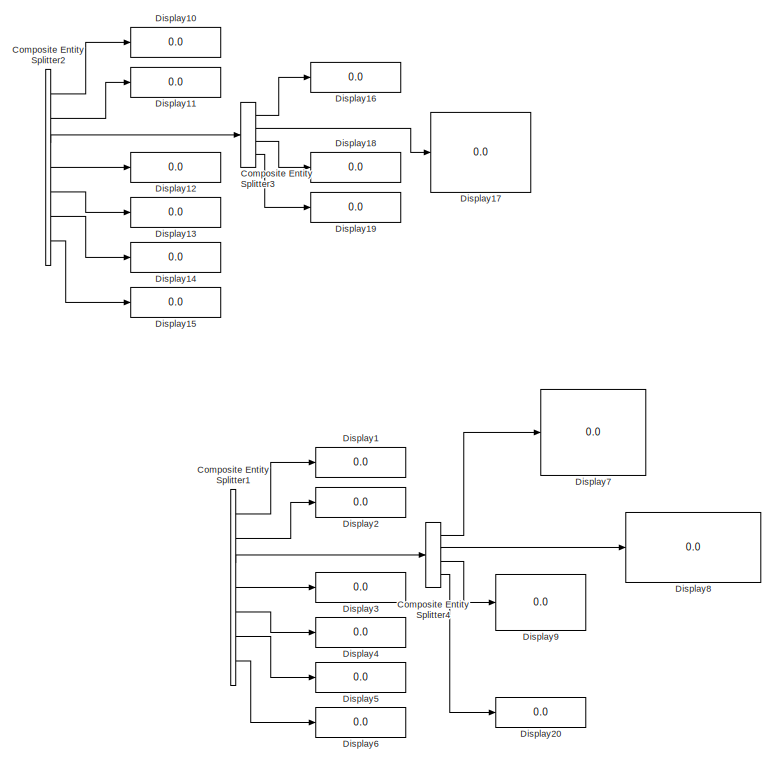
[diagram: Router1 - part 1/2, right side, full height]
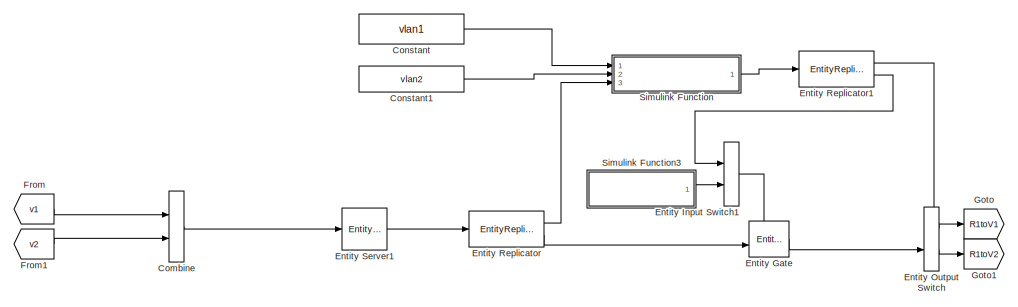
[diagram: Router1 - part 2/2, middle left region]
BLOCK [SubSystem] Router1
  Ports = []
  RequestExecContextInheritance = off
BLOCK [EntityInputSwitch] Router1/Combine
  InputPortMap = u1,u2
  InputPortMessageModes = m,m
  OutputPortMap = o0
  OutputPortMessageModes = m
  Ports = [2, 1]
BLOCK [CompositeEntitySplitter] Router1/Composite Entity Splitter1
  Commented = on
  InputPortMap = u0
  InputPortMessageModes = m
  NumberOutputPorts = 7
  OutputPortMap = o0,o1,o2,o3,o4,o5,o6
  OutputPortMessageModes = m,m,m,m,m,m,m
  Ports = [1, 7]
BLOCK [CompositeEntitySplitter] Router1/Composite Entity Splitter2
  Commented = on
  InputPortMap = u0
  InputPortMessageModes = m
  NumberOutputPorts = 7
  OutputPortMap = o0,o1,o2,o3,o4,o5,o6
  OutputPortMessageModes = m,m,m,m,m,m,m
  Ports = [1, 7]
BLOCK [CompositeEntitySplitter] Router1/Composite Entity Splitter3
  Commented = on
  InputPortMap = u0
  InputPortMessageModes = m
  NumberOutputPorts = 4
  OutputPortMap = o0,o1,o2,o3
  OutputPortMessageModes = m,m,m,m
  Ports = [1, 4]
BLOCK [CompositeEntitySplitter] Router1/Composite Entity Splitter4
  Commented = on
  InputPortMap = u0
  InputPortMessageModes = m
  NumberOutputPorts = 4
  OutputPortMap = o0,o1,o2,o3
  OutputPortMessageModes = m,m,m,m
  Ports = [1, 4]
BLOCK [Constant] Router1/Constant
  Value = vlan1
BLOCK [Constant] Router1/Constant1
  Value = vlan2
BLOCK [Display] Router1/Display1
  Commented = on
  Decimation = 1
  Ports = [1]
BLOCK [Display] Router1/Display10
  Decimation = 1
  Ports = [1]
BLOCK [Display] Router1/Display11
  Commented = on
  Decimation = 1
  Ports = [1]
BLOCK [Display] Router1/Display12
  Commented = on
  Decimation = 1
  Ports = [1]
BLOCK [Display] Router1/Display13
  Commented = on
  Decimation = 1
  Ports = [1]
BLOCK [Display] Router1/Display14
  Commented = on
  Decimation = 1
  Ports = [1]
BLOCK [Display] Router1/Display15
  Commented = on
  Decimation = 1
  Ports = [1]
BLOCK [Display] Router1/Display16
  Commented = on
  Decimation = 1
  Ports = [1]
BLOCK [Display] Router1/Display17
  Commented = on
  Decimation = 1
  Ports = [1]
BLOCK [Display] Router1/Display18
  Commented = on
  Decimation = 1
  Ports = [1]
BLOCK [Display] Router1/Display19
  Commented = on
  Decimation = 1
  Ports = [1]
BLOCK [Display] Router1/Display2
  Commented = on
  Decimation = 1
  Ports = [1]
BLOCK [Display] Router1/Display20
  Commented = on
  Decimation = 1
  Ports = [1]
BLOCK [Display] Router1/Display3
  Commented = on
  Decimation = 1
  Ports = [1]
BLOCK [Display] Router1/Display4
  Commented = on
  Decimation = 1
  Ports = [1]
BLOCK [Display] Router1/Display5
  Commented = on
  Decimation = 1
  Ports = [1]
BLOCK [Display] Router1/Display6
  Commented = on
  Decimation = 1
  Ports = [1]
BLOCK [Display] Router1/Display7
  Commented = on
  Decimation = 1
  Ports = [1]
BLOCK [Display] Router1/Display8
  Commented = on
  Decimation = 1
  Ports = [1]
BLOCK [Display] Router1/Display9
  Commented = on
  Decimation = 1
  Ports = [1]
BLOCK [EntityGate] Router1/Entity Gate
  InputPortMap = u0,u1
  InputPortMessageModes = m,m
  OpenGateAtSimulationStart = on
  OutputPortMap = o0
  OutputPortMessageModes = m
  Ports = [2, 1]
BLOCK [EntityInputSwitch] Router1/Entity Input Switch1
  InputPortMap = u1,u2
  InputPortMessageModes = m,m
  OutputPortMap = o0
  OutputPortMessageModes = m
  Ports = [2, 1]
BLOCK [EntityOutputSwitch] Router1/Entity Output Switch
  InputPortMap = u0,u1
  InputPortMessageModes = m,m
  OutputPortMap = o0,o1
  OutputPortMessageModes = m,m
  Ports = [2, 2]
  SwitchAttributeName = Attribute1
  SwitchingCriterion = From control port
BLOCK [EntityReplicator] Router1/Entity Replicator
  InputPortMap = u0
  InputPortMessageModes = m
  OutputPortMap = o0,o1
  OutputPortMessageModes = m,m
  Ports = [1, 2]
BLOCK [EntityReplicator] Router1/Entity Replicator1
  InputPortMap = u0
  InputPortMessageModes = m
  OutputPortMap = o0,o1
  OutputPortMessageModes = m,m
  Ports = [1, 2]
BLOCK [EntityServer] Router1/Entity Server1
  Capacity = inf
  ExitAction = gateControl();
  InputPortMap = u2
  InputPortMessageModes = m
  OutputPortMap = o9
  OutputPortMessageModes = m
  Ports = [1, 1]
  ServiceCompleteAction = networkselector();
  ServiceTimeSource = MATLAB action
BLOCK [From] Router1/From
  GotoTag = v1
  TagVisibility = global
BLOCK [From] Router1/From1
  GotoTag = v2
  TagVisibility = global
BLOCK [Goto] Router1/Goto
  GotoTag = R1toV1
  TagVisibility = global
BLOCK [Goto] Router1/Goto1
  GotoTag = R1toV2
  TagVisibility = global
BLOCK [SubSystem] Router1/Simulink Function
  Ports = [3, 1, 0, 1]
  RequestExecContextInheritance = off
  TreatAsAtomicUnit = on
BLOCK [BusSelector] Router1/Simulink Function/Bus Selector
  OutputSignals = Data
  Ports = [1, 1]
BLOCK [BusSelector] Router1/Simulink Function/Bus Selector1
  OutputSignals = DestAddress
  Ports = [1, 1]
BLOCK [Inport] Router1/Simulink Function/Inport
BLOCK [Inport] Router1/Simulink Function/Inport1
  Port = 2
BLOCK [Inport] Router1/Simulink Function/Inport2
  Port = 3
BLOCK [SubSystem] Router1/Simulink Function/MATLAB Function
  ErrorFcn = Stateflow.Translate.translate
  PermitHierarchicalResolution = ExplicitOnly
  Ports = [3, 1]
  RequestExecContextInheritance = off
  SFBlockType = MATLAB Function
  TreatAsAtomicUnit = on
BLOCK [Demux] Router1/Simulink Function/MATLAB Function/ Demux 
  Outputs = 1
  Ports = [1, 1]
BLOCK [S-Function] Router1/Simulink Function/MATLAB Function/ SFunction 
  EnableBusSupport = on
  FunctionName = sf_sfun
  PortCounts = [3 2]
  Ports = [3, 2]
  SFcnIsStateOwnerBlock = off
  SFunctionDeploymentMode = off
  Tag = Stateflow S-Function 12
BLOCK [Terminator] Router1/Simulink Function/MATLAB Function/ Terminator 
BLOCK [Inport] Router1/Simulink Function/MATLAB Function/dest
  Port = 3
BLOCK [Outport] Router1/Simulink Function/MATLAB Function/idx
BLOCK [Inport] Router1/Simulink Function/MATLAB Function/v1
BLOCK [Inport] Router1/Simulink Function/MATLAB Function/v2
  Port = 2
BLOCK [Send] Router1/Simulink Function/Message Send
  InputPortMap = u1
  OutputPortMessageModes = m
  Ports = [1, 1]
BLOCK [Receive] Router1/Simulink Function/Receive
  InputPortMap = u0
  InputPortMessageModes = m
  OutputPortMap = o1
  Ports = [1, 1]
  QueueLength = 1
  QueueOverwriting = on
  QueueType = LIFO
  UseInternalQueue = off
BLOCK [TriggerPort] Router1/Simulink Function/networkselector
  FunctionName = networkselector
  FunctionVisibility = scoped
  IsSimulinkFunction = on
  Ports = []
  StatesWhenEnabling = held
  TriggerType = function-call
  VariantControl = (inherit)
BLOCK [Outport] Router1/Simulink Function/path
BLOCK [SubSystem] Router1/Simulink Function3
  Ports = [0, 1, 0, 1]
  RequestExecContextInheritance = off
  TreatAsAtomicUnit = on
BLOCK [Constant] Router1/Simulink Function3/Constant
  Value = 0
BLOCK [Send] Router1/Simulink Function3/Message Send
  InputPortMap = u1
  OutputPortMessageModes = m
  Ports = [1, 1]
BLOCK [Outport] Router1/Simulink Function3/Out
BLOCK [TriggerPort] Router1/Simulink Function3/gateControl
  FunctionName = gateControl
  FunctionVisibility = scoped
  IsSimulinkFunction = on
  Ports = []
  StatesWhenEnabling = held
  TriggerType = function-call
  VariantControl = Variant
BLOCK [Scope] Scope
  Floating = off
  IOType = viewer
  NumInputPorts = 1
  Ports = []
  ScopeSpecificationString = Simulink.scopes.TimeScopeBlockCfg('CurrentConfiguration', extmgr.ConfigurationSet(extmgr.Configuration('Core','General UI',true),extmgr.Configuration('Core','Source UI',true),extmgr.Configuration('Sources','WiredSimulink',true,'DataLoggingVariableName','ScopeData2'),extmgr.Configuration('Visuals','Time Domain',true,'SerializedDisplays',{struct('MinYLimReal','0.08317','MaxYLimReal','1.10187','YLabe...<+1412ch>
ANNOTATION (root): <copyright redacted>
ANNOTATION Computer 1: Data Link
ANNOTATION Computer 1: Network
ANNOTATION Computer 1/Ethernet Interface 1: Assemble Ethernet Frame
ANNOTATION Computer 1/Ethernet Interface 1: Medium Access Control
ANNOTATION Computer 2: Data Link
ANNOTATION Computer 2: Network
ANNOTATION Computer 2/Ethernet Interface 2: Assemble Ethernet Frame
ANNOTATION Computer 2/Ethernet Interface 2: Medium Access Control
ANNOTATION Computer 3: Data Link
ANNOTATION Computer 3: Network
ANNOTATION Computer 3/Ethernet Interface 1: Assemble Ethernet Frame
ANNOTATION Computer 3/Ethernet Interface 1: Medium Access Control
ANNOTATION Computer 4: Data Link
ANNOTATION Computer 4: Network
ANNOTATION Computer 4/Ethernet Interface 1: Assemble Ethernet Frame
ANNOTATION Computer 4/Ethernet Interface 1: Medium Access Control
LINE Computer 1/Composite Entity Splitter1:1 -> Computer 1/Display6:1
LINE Computer 1/Composite Entity Splitter1:2 -> Computer 1/Display7:1
LINE Computer 1/Composite Entity Splitter1:3 -> Computer 1/Display8:1
LINE Computer 1/Composite Entity Splitter1:4 -> Computer 1/Display9:1
LINE Computer 1/Constant:1 -> Computer 1/Subsystem:1
LINE Computer 1/Ethernet Interface 1:1 -> Computer 1/Average Channel Utilization:1
NET Computer 1/Ethernet Interface 1:2 -> Computer 1/Composite Entity Splitter1:1, Computer 1/To Workspace:1
LINE Computer 1/Ethernet Interface 1:3 -> Computer 1/Terminator:1
LINE Computer 1/Subsystem/Bus Creator:1 -> Computer 1/Subsystem/Send:1
LINE Computer 1/Subsystem/Constant:1 -> Computer 1/Subsystem/Bus Creator:2
LINE Computer 1/Subsystem/Generate Data 1:1 -> Computer 1/Subsystem/Bus Creator:3
LINE Computer 1/Subsystem/Generate Data 1:2 -> Computer 1/Subsystem/Bus Creator:4
LINE Computer 1/Subsystem/In1:1 -> Computer 1/Subsystem/Bus Creator:1
LINE Computer 1/Subsystem/Send:1 -> Computer 1/Subsystem/out:1
LINE Computer 1/Subsystem:1 -> Computer 1/Ethernet Interface 1:1
LINE Computer 2/Composite Entity Splitter1:1 -> Computer 2/Display6:1
LINE Computer 2/Composite Entity Splitter1:2 -> Computer 2/Display7:1
LINE Computer 2/Composite Entity Splitter1:3 -> Computer 2/Display8:1
LINE Computer 2/Composite Entity Splitter1:4 -> Computer 2/Display9:1
LINE Computer 2/Constant:1 -> Computer 2/Subsystem:1
LINE Computer 2/Ethernet Interface 2:1 -> Computer 2/Average Channel Utilization1:1
NET Computer 2/Ethernet Interface 2:2 -> Computer 2/Composite Entity Splitter1:1, Computer 2/To Workspace2:1
LINE Computer 2/Ethernet Interface 2:3 -> Computer 2/Terminator1:1
LINE Computer 2/Subsystem/Bus Creator:1 -> Computer 2/Subsystem/Send:1
LINE Computer 2/Subsystem/Constant:1 -> Computer 2/Subsystem/Bus Creator:2
LINE Computer 2/Subsystem/Generate Data 1:1 -> Computer 2/Subsystem/Bus Creator:3
LINE Computer 2/Subsystem/Generate Data 1:2 -> Computer 2/Subsystem/Bus Creator:4
LINE Computer 2/Subsystem/In1:1 -> Computer 2/Subsystem/Bus Creator:1
LINE Computer 2/Subsystem/Send:1 -> Computer 2/Subsystem/out:1
LINE Computer 2/Subsystem:1 -> Computer 2/Ethernet Interface 2:1
LINE Computer 3/Composite Entity Splitter1:1 -> Computer 3/Display6:1
LINE Computer 3/Composite Entity Splitter1:2 -> Computer 3/Display7:1
LINE Computer 3/Composite Entity Splitter1:3 -> Computer 3/Display8:1
LINE Computer 3/Composite Entity Splitter1:4 -> Computer 3/Display9:1
LINE Computer 3/Constant:1 -> Computer 3/Subsystem:1
LINE Computer 3/Ethernet Interface 1:1 -> Computer 3/Average Channel Utilization:1
NET Computer 3/Ethernet Interface 1:2 -> Computer 3/Composite Entity Splitter1:1, Computer 3/To Workspace:1
LINE Computer 3/Ethernet Interface 1:3 -> Computer 3/Terminator:1
LINE Computer 3/Subsystem/Bus Creator:1 -> Computer 3/Subsystem/Send:1
LINE Computer 3/Subsystem/Constant:1 -> Computer 3/Subsystem/Bus Creator:2
LINE Computer 3/Subsystem/Generate Data 1:1 -> Computer 3/Subsystem/Bus Creator:3
LINE Computer 3/Subsystem/Generate Data 1:2 -> Computer 3/Subsystem/Bus Creator:4
LINE Computer 3/Subsystem/In1:1 -> Computer 3/Subsystem/Bus Creator:1
LINE Computer 3/Subsystem/Send:1 -> Computer 3/Subsystem/out:1
LINE Computer 3/Subsystem:1 -> Computer 3/Ethernet Interface 1:1
LINE Computer 4/Composite Entity Splitter1:1 -> Computer 4/Display6:1
LINE Computer 4/Composite Entity Splitter1:2 -> Computer 4/Display7:1
LINE Computer 4/Composite Entity Splitter1:3 -> Computer 4/Display8:1
LINE Computer 4/Composite Entity Splitter1:4 -> Computer 4/Display9:1
LINE Computer 4/Constant:1 -> Computer 4/Subsystem:1
LINE Computer 4/Ethernet Interface 1:1 -> Computer 4/Average Channel Utilization:1
NET Computer 4/Ethernet Interface 1:2 -> Computer 4/Composite Entity Splitter1:1, Computer 4/To Workspace:1
LINE Computer 4/Ethernet Interface 1:3 -> Computer 4/Terminator:1
LINE Computer 4/Subsystem/Bus Creator:1 -> Computer 4/Subsystem/Send:1
LINE Computer 4/Subsystem/Constant:1 -> Computer 4/Subsystem/Bus Creator:2
LINE Computer 4/Subsystem/Generate Data 1:1 -> Computer 4/Subsystem/Bus Creator:3
LINE Computer 4/Subsystem/Generate Data 1:2 -> Computer 4/Subsystem/Bus Creator:4
LINE Computer 4/Subsystem/In1:1 -> Computer 4/Subsystem/Bus Creator:1
LINE Computer 4/Subsystem/Send:1 -> Computer 4/Subsystem/out:1
LINE Computer 4/Subsystem:1 -> Computer 4/Ethernet Interface 1:1
LINE Router1/Combine:1 -> Router1/Entity Server1:1
LINE Router1/Composite Entity Splitter1:1 -> Router1/Display1:1
LINE Router1/Composite Entity Splitter1:2 -> Router1/Display2:1
LINE Router1/Composite Entity Splitter1:3 -> Router1/Composite Entity Splitter4:1
LINE Router1/Composite Entity Splitter1:4 -> Router1/Display3:1
LINE Router1/Composite Entity Splitter1:5 -> Router1/Display4:1
LINE Router1/Composite Entity Splitter1:6 -> Router1/Display5:1
LINE Router1/Composite Entity Splitter1:7 -> Router1/Display6:1
LINE Router1/Composite Entity Splitter2:1 -> Router1/Display10:1
LINE Router1/Composite Entity Splitter2:2 -> Router1/Display11:1
LINE Router1/Composite Entity Splitter2:3 -> Router1/Composite Entity Splitter3:1
LINE Router1/Composite Entity Splitter2:4 -> Router1/Display12:1
LINE Router1/Composite Entity Splitter2:5 -> Router1/Display13:1
LINE Router1/Composite Entity Splitter2:6 -> Router1/Display14:1
LINE Router1/Composite Entity Splitter2:7 -> Router1/Display15:1
LINE Router1/Composite Entity Splitter3:1 -> Router1/Display16:1
LINE Router1/Composite Entity Splitter3:2 -> Router1/Display17:1
LINE Router1/Composite Entity Splitter3:3 -> Router1/Display18:1
LINE Router1/Composite Entity Splitter3:4 -> Router1/Display19:1
LINE Router1/Composite Entity Splitter4:1 -> Router1/Display7:1
LINE Router1/Composite Entity Splitter4:2 -> Router1/Display8:1
LINE Router1/Composite Entity Splitter4:3 -> Router1/Display9:1
LINE Router1/Composite Entity Splitter4:4 -> Router1/Display20:1
LINE Router1/Constant1:1 -> Router1/Simulink Function:2
LINE Router1/Constant:1 -> Router1/Simulink Function:1
LINE Router1/Entity Gate:1 -> Router1/Entity Output Switch:2
LINE Router1/Entity Input Switch1:1 -> Router1/Entity Gate:1
LINE Router1/Entity Output Switch:1 -> Router1/Goto:1
LINE Router1/Entity Output Switch:2 -> Router1/Goto1:1
LINE Router1/Entity Replicator1:1 -> Router1/Entity Output Switch:1
LINE Router1/Entity Replicator1:2 -> Router1/Entity Input Switch1:1
LINE Router1/Entity Replicator:1 -> Router1/Simulink Function:3
LINE Router1/Entity Replicator:2 -> Router1/Entity Gate:2
LINE Router1/Entity Server1:1 -> Router1/Entity Replicator:1
LINE Router1/From1:1 -> Router1/Combine:2
LINE Router1/From:1 -> Router1/Combine:1
LINE Router1/Simulink Function/Bus Selector1:1 -> Router1/Simulink Function/MATLAB Function:3
LINE Router1/Simulink Function/Bus Selector:1 -> Router1/Simulink Function/Bus Selector1:1
LINE Router1/Simulink Function/Inport1:1 -> Router1/Simulink Function/MATLAB Function:2
LINE Router1/Simulink Function/Inport2:1 -> Router1/Simulink Function/Receive:1
LINE Router1/Simulink Function/Inport:1 -> Router1/Simulink Function/MATLAB Function:1
LINE Router1/Simulink Function/MATLAB Function:1 -> Router1/Simulink Function/Message Send:1
LINE Router1/Simulink Function/Message Send:1 -> Router1/Simulink Function/path:1
LINE Router1/Simulink Function/Receive:1 -> Router1/Simulink Function/Bus Selector:1
LINE Router1/Simulink Function3/Constant:1 -> Router1/Simulink Function3/Message Send:1
LINE Router1/Simulink Function3/Message Send:1 -> Router1/Simulink Function3/Out:1
LINE Router1/Simulink Function3:1 -> Router1/Entity Input Switch1:2
LINE Router1/Simulink Function:1 -> Router1/Entity Replicator1:1
note: NET lines group one-source signal fan-out (src -> all destinations, sorted); 1:1 wires keep LINE
CHART Computer 2/Ethernet Interface 2/Simulink Function2/MATLAB Function1 states=1 transitions=1
  STATE_LABEL 'eML_blk_kernel()'
  STATE_LABEL 'SCRIPT:\nfunction util = fcn(t, isIdle)\n\npersistent lastTime lastState totalUse;\n\nif isempty(lastTime)\n    lastTime = 0;\n    lastState = 0;\n    totalUse = 0;\nend\n\nif lastState ==1 % busy\n    totalUse = totalUse + (t - lastTime);\nend\nlastTime = t;\nif isIdle\n    lastState = 0;\nelse\n    lastState = 1;\nend\nif t > 0\n    util = totalUse/t;\nelse\n    util = lastState;\nend\n\n'  <repeated x4 — deduplicated; at blocks: MATLAB Function1>
CHART Computer 1/Ethernet Interface 1/CSMA//CD states=11 transitions=19
  STATE_LABEL 'Standby\nen:\nIsIdle.data = 1;\nsend(IsIdle);\ncompUtil(1);'
  STATE_LABEL 'Receiving\nen:\ndelay = RxIn.data.TxDelay;\nerr = RxIn.data.CRC;\nforward(RxIn, Rx);\nIsIdle.data = 0;\nsend(IsIdle);\ncompUtil(0);'
  STATE_LABEL 'Transmitting\nen:\ndelay = TxIn.data.TxDelay;\nforward(TxIn, TxBuffer);\nIsIdle.data = 0;\nsend(IsIdle);\ncompUtil(0);'
  STATE_LABEL 'Collision\nen:\nn = n + 1;'
  STATE_LABEL 'TxSuccess\n'
  STATE_LABEL 'RxSuccess'
  STATE_LABEL 'RxFail\n'
  STATE_LABEL 'TxReset'
  STATE_LABEL 'RxReset'
  STATE_LABEL 't = Backoff(u)'
  STATE_LABEL 'SCRIPT:\nfunction t = Backoff(u)\nt = floor(rand*(2^min([u,10])))*5.12e-5;\n'
  STATE_LABEL 'InitRand'
  STATE_LABEL "SCRIPT:\nfunction InitRand\nrand('seed', StationID);"
CHART Computer 3/Subsystem/Generate Data 1 states=1 transitions=1
  STATE_LABEL 'eML_blk_kernel()'
  STATE_LABEL 'SCRIPT:\nfunction [Data, PayloadSize] = randomLengthPayload()\n% Generate Ethernet payload of random length between min and max frame size\nPayloadSize = 45+randi(1455); % Payload length is 46-1500 bytes\nData = zeros(1,1500);\nData(1:PayloadSize) = randi(3,1, PayloadSize)-1; % Payload values are random (0-255) for a byte'  <repeated x4 — deduplicated; at blocks: Generate Data 1>
CHART Computer 3/Ethernet Interface 1/CSMA//CD states=11 transitions=19
  STATE_LABEL 'Standby\nen:\nIsIdle.data = 1;\nsend(IsIdle);\ncompUtil(1);'
  STATE_LABEL 'Receiving\nen:\ndelay = RxIn.data.TxDelay;\nerr = RxIn.data.CRC;\nforward(RxIn, Rx);\nIsIdle.data = 0;\nsend(IsIdle);\ncompUtil(0);'
  STATE_LABEL 'Transmitting\nen:\ndelay = TxIn.data.TxDelay;\nforward(TxIn, TxBuffer);\nIsIdle.data = 0;\nsend(IsIdle);\ncompUtil(0);'
  STATE_LABEL 'Collision\nen:\nn = n + 1;'
  STATE_LABEL 'TxSuccess\n'
  STATE_LABEL 'RxSuccess'
  STATE_LABEL 'RxFail\n'
  STATE_LABEL 'TxReset'
  STATE_LABEL 'RxReset'
  STATE_LABEL 't = Backoff(u)'
  STATE_LABEL 'SCRIPT:\nfunction t = Backoff(u)\nt = floor(rand*(2^min([u,10])))*5.12e-5;\n'
  STATE_LABEL 'InitRand'
  STATE_LABEL "SCRIPT:\nfunction InitRand\nrand('seed', StationID);"
CHART Computer 1/Ethernet Interface 1/Simulink Function1/MATLAB Function1 states=1 transitions=1
  STATE_LABEL 'eML_blk_kernel()'
CHART Computer 3/Ethernet Interface 1/Simulink Function1/MATLAB Function1 states=1 transitions=1
  STATE_LABEL 'eML_blk_kernel()'
CHART Computer 4/Ethernet Interface 1/CSMA//CD states=11 transitions=19
  STATE_LABEL 'Standby\nen:\nIsIdle.data = 1;\nsend(IsIdle);\ncompUtil(1);'
  STATE_LABEL 'Receiving\nen:\ndelay = RxIn.data.TxDelay;\nerr = RxIn.data.CRC;\nforward(RxIn, Rx);\nIsIdle.data = 0;\nsend(IsIdle);\ncompUtil(0);'
  STATE_LABEL 'Transmitting\nen:\ndelay = TxIn.data.TxDelay;\nforward(TxIn, TxBuffer);\nIsIdle.data = 0;\nsend(IsIdle);\ncompUtil(0);'
  STATE_LABEL 'Collision\nen:\nn = n + 1;'
  STATE_LABEL 'TxSuccess\n'
  STATE_LABEL 'RxSuccess'
  STATE_LABEL 'RxFail\n'
  STATE_LABEL 'TxReset'
  STATE_LABEL 'RxReset'
  STATE_LABEL 't = Backoff(u)'
  STATE_LABEL 'SCRIPT:\nfunction t = Backoff(u)\nt = floor(rand*(2^min([u,10])))*5.12e-5;\n'
  STATE_LABEL 'InitRand'
  STATE_LABEL "SCRIPT:\nfunction InitRand\nrand('seed', StationID);"
CHART Computer 4/Ethernet Interface 1/Simulink Function1/MATLAB Function1 states=1 transitions=1
  STATE_LABEL 'eML_blk_kernel()'
CHART    Ethernet1/Simulink Function/MATLAB Function states=1 transitions=1
  STATE_LABEL 'eML_blk_kernel()'
  STATE_LABEL 'SCRIPT:\nfunction idx = fcn(v1,dest)\n\nif(v1(1)==dest(1)&&v1(2)==dest(2)&&v1(3)==dest(3))\n    idx=1;\nelse\n    idx=2;\nend\n'
CHART Router1/Simulink Function/MATLAB Function states=1 transitions=1
  STATE_LABEL 'eML_blk_kernel()'
  STATE_LABEL 'SCRIPT:\nfunction idx = fcn(v1,v2,dest)\n\nif(v1(1)==dest(1)&&v1(2)==dest(2)&&v1(3)==dest(3))\n    idx=1;\nelseif(v2(1)==dest(1)&&v2(2)==dest(2)&&v2(3)==dest(3))\n    idx=2;\nelse\n    idx=1;\nend\n'
CHART Computer 2/Subsystem/Generate Data 1 states=1 transitions=1
  STATE_LABEL 'eML_blk_kernel()'
CHART Computer 4/Subsystem/Generate Data 1 states=1 transitions=1
  STATE_LABEL 'eML_blk_kernel()'
CHART    Ethernet2/Simulink Function/MATLAB Function states=1 transitions=1
  STATE_LABEL 'eML_blk_kernel()'
  STATE_LABEL 'SCRIPT:\nfunction idx = fcn(v1,dest)\n\nif(v1(1)==dest(1)&&v1(2)==dest(2)&&v1(3)==dest(3))\n    idx=1;\nelse\n    idx=2;\nend\n'
CHART Computer 1/Subsystem/Generate Data 1 states=1 transitions=1
  STATE_LABEL 'eML_blk_kernel()'
CHART Computer 2/Ethernet Interface 2/CSMA//CD states=11 transitions=19
  STATE_LABEL 'Standby\nen:\nIsIdle.data = 1;\nsend(IsIdle);\ncompUtil(1);'
  STATE_LABEL 'Receiving\nen:\ndelay = RxIn.data.TxDelay;\nerr = RxIn.data.CRC;\nforward(RxIn, Rx);\nIsIdle.data = 0;\nsend(IsIdle);\ncompUtil(0);'
  STATE_LABEL 'Transmitting\nen:\ndelay = TxIn.data.TxDelay;\nforward(TxIn, TxBuffer);\nIsIdle.data = 0;\nsend(IsIdle);\ncompUtil(0);'
  STATE_LABEL 'Collision\nen:\nn = n + 1;'
  STATE_LABEL 'TxSuccess\n'
  STATE_LABEL 'RxSuccess'
  STATE_LABEL 'RxFail\n'
  STATE_LABEL 'TxReset'
  STATE_LABEL 'RxReset'
  STATE_LABEL 't = Backoff(u)'
  STATE_LABEL 'SCRIPT:\nfunction t = Backoff(u)\nt = floor(rand*(2^min([u,10])))*5.12e-5;\n'
  STATE_LABEL 'InitRand'
  STATE_LABEL "SCRIPT:\nfunction InitRand\nrand('seed', StationID);"
CHART  states=0 transitions=0
CHART  states=0 transitions=0
CHART  states=0 transitions=0
CHART  states=0 transitions=0
CHART  states=0 transitions=0
CHART  states=0 transitions=0
CHART  states=0 transitions=0
CHART  states=0 transitions=0
CHART  states=0 transitions=0
CHART  states=0 transitions=0
CHART  states=0 transitions=0
CHART  states=0 transitions=0
CHART  states=0 transitions=0
CHART  states=0 transitions=0
CHART  states=0 transitions=0
